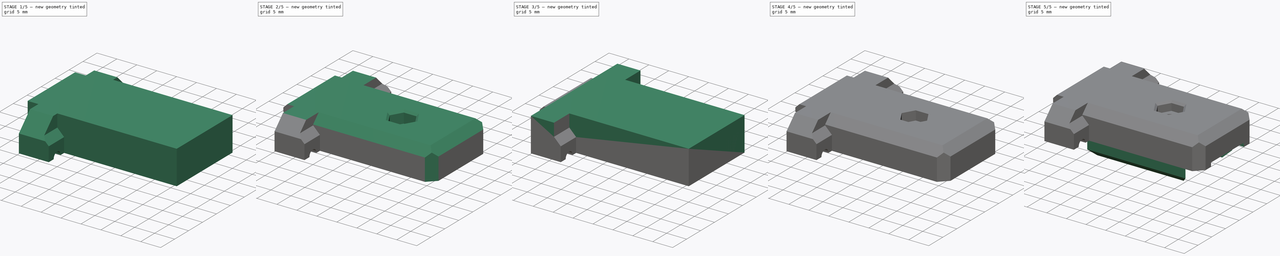
[diagram: build sequence overview — one tinted view per stage of 5, left to right]
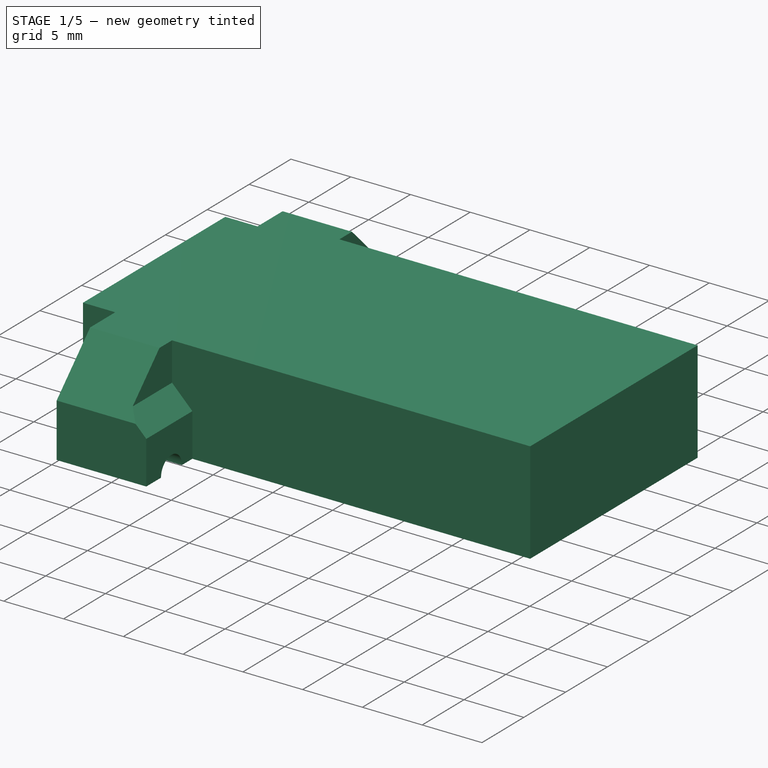
[diagram: stage 1 of 5 — iso view after this stage's code; geometry added in this stage tinted green]
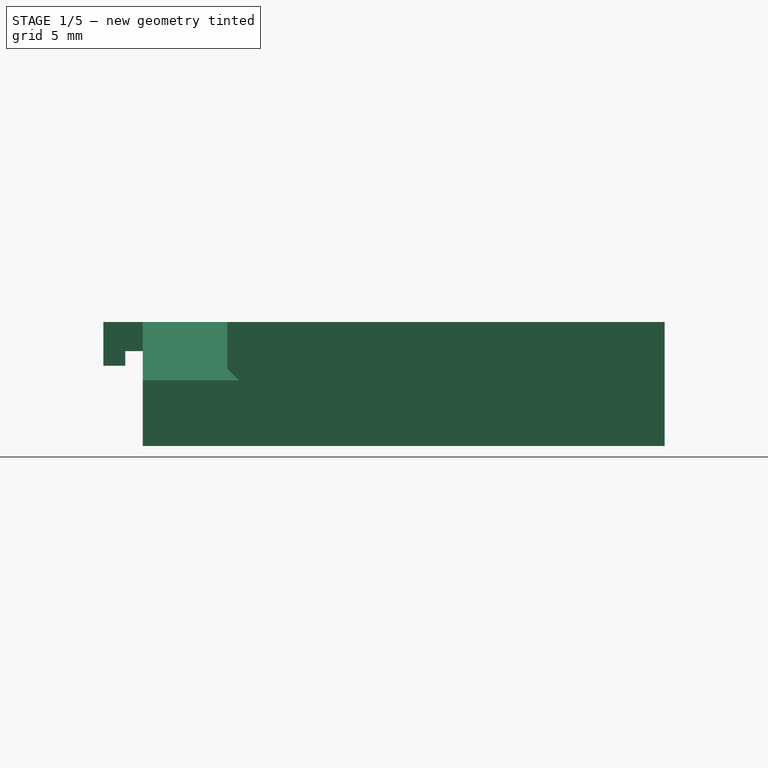
[diagram: stage 1 of 5 — front view after this stage's code; geometry added in this stage tinted green]
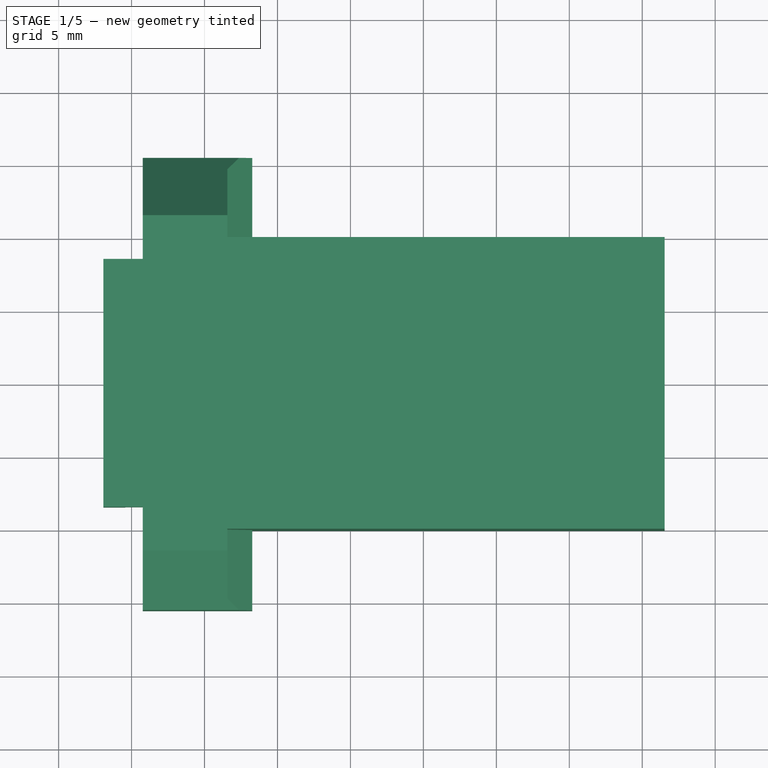
[diagram: stage 1 of 5 — top view after this stage's code; geometry added in this stage tinted green]
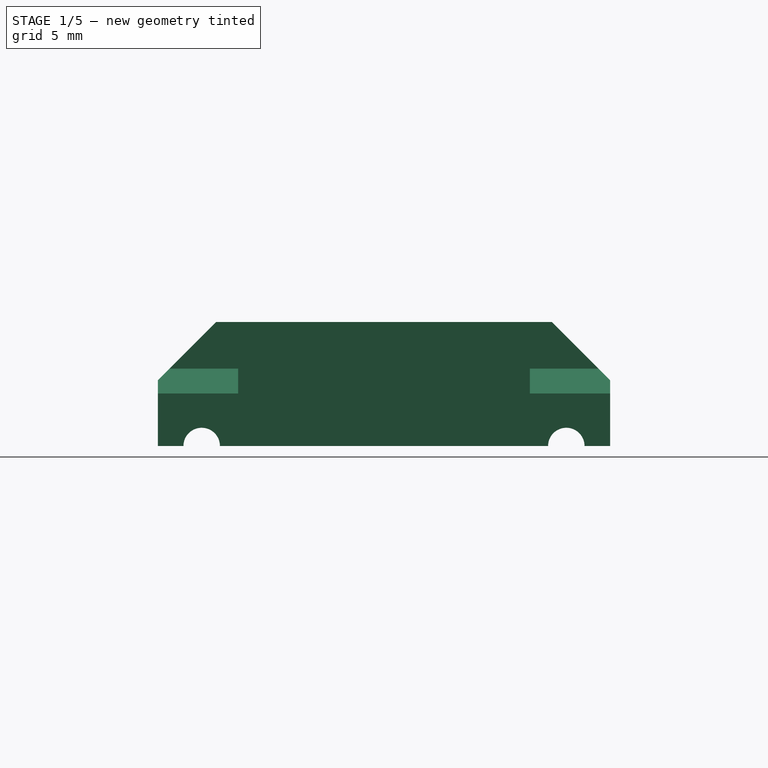
[diagram: stage 1 of 5 — right view after this stage's code; geometry added in this stage tinted green]
FCSTD DOCUMENT  (FreeCAD 1.0R38641 +468 (Git))
Label: case
License: All rights reserved
LicenseURL: https://en.wikipedia.org/wiki/All_rights_reserved
objects: Part::Feature×92, Sketcher::SketchObject×30, PartDesign::Pocket×23, PartDesign::Chamfer×19, PartDesign::Pad×11, App::Part×4, PartDesign::Mirrored×4, PartDesign::Fillet×4, PartDesign::SubShapeBinder×2, PartDesign::Body×2
note: 335 computed .brp shape members not serialized (recipe doc carries the construction recipe); baked Part::Feature solids carry a one-line shape summary decoded from their .brp

FEATURE [PartDesign::SubShapeBinder] Binder001
  BindCopyOnChange = 0
  BindMode = 0
  ClaimChildren = false
  Context = -> Body001 [Binder001.]
  Fuse = false
  MakeFace = true
  OffsetFill = false
  OffsetIntersection = false
  OffsetJoinType = 0
  OffsetOpenResult = false
  PartialLoad = false
  Refine = true
  Relative = true
  Support = -> [rs232usb_002[Part__Feature091.Face5]]
  _Version = 2
FEATURE [Part::Feature] Part__Feature046  label="C_0805_2012Metric003"
  Placement = pos=(3.6195,4.826,1.595) rot=(0,0,1;3.14159rad)
  shape: bbox 2 x 1.25 x 1.25 mm, 28 faces (baked)
FEATURE [Part::Feature] Part__Feature047  label="USB_C_Receptacle_GCT_USB4105-xx-A_16P_TopMnt_Horizontal037"
  Placement = pos=(10.3505,0,1.595) rot=(0,0,1;1.5708rad)
  shape: bbox 2.4 x 0.25 x 0.1 mm, 6 faces (baked)
FEATURE [Part::Feature] Part__Feature048  label="USB_C_Receptacle_GCT_USB4105-xx-A_16P_TopMnt_Horizontal038"
  Placement = pos=(10.3505,0,1.595) rot=(0,0,1;1.5708rad)
  shape: bbox 2.4 x 0.25 x 0.1 mm, 6 faces (baked)
FEATURE [Part::Feature] Part__Feature049  label="USB_C_Receptacle_GCT_USB4105-xx-A_16P_TopMnt_Horizontal039"
  Placement = pos=(10.3505,0,1.595) rot=(0,0,1;1.5708rad)
  shape: bbox 1.9 x 0.25 x 0.1 mm, 6 faces (baked)
FEATURE [Part::Feature] Part__Feature050  label="USB_C_Receptacle_GCT_USB4105-xx-A_16P_TopMnt_Horizontal040"
  Placement = pos=(10.3505,0,1.595) rot=(0,0,1;1.5708rad)
  shape: bbox 1.9 x 0.25 x 0.1 mm, 6 faces (baked)
FEATURE [Part::Feature] Part__Feature051  label="USB_C_Receptacle_GCT_USB4105-xx-A_16P_TopMnt_Horizontal041"
  Placement = pos=(10.3505,0,1.595) rot=(0,0,1;1.5708rad)
  shape: bbox 2.4 x 0.25 x 0.1 mm, 6 faces (baked)
FEATURE [Part::Feature] Part__Feature052  label="USB_C_Receptacle_GCT_USB4105-xx-A_16P_TopMnt_Horizontal042"
  Placement = pos=(10.3505,0,1.595) rot=(0,0,1;1.5708rad)
  shape: bbox 2.4 x 0.25 x 0.1 mm, 6 faces (baked)
FEATURE [Part::Feature] Part__Feature053  label="USB_C_Receptacle_GCT_USB4105-xx-A_16P_TopMnt_Horizontal043"
  Placement = pos=(10.3505,0,1.595) rot=(0,0,1;1.5708rad)
  shape: bbox 1.9 x 0.25 x 0.1 mm, 6 faces (baked)
FEATURE [Part::Feature] Part__Feature054  label="USB_C_Receptacle_GCT_USB4105-xx-A_16P_TopMnt_Horizontal044"
  Placement = pos=(10.3505,0,1.595) rot=(0,0,1;1.5708rad)
  shape: bbox 1.9 x 0.25 x 0.1 mm, 6 faces (baked)
FEATURE [Part::Feature] Part__Feature055  label="USB_C_Receptacle_GCT_USB4105-xx-A_16P_TopMnt_Horizontal045"
  Placement = pos=(10.3505,0,1.595) rot=(0,0,1;1.5708rad)
  shape: bbox 7.05 x 4.45 x 3.59 mm, 66 faces (baked)
FEATURE [Part::Feature] Part__Feature056  label="USB_C_Receptacle_GCT_USB4105-xx-A_16P_TopMnt_Horizontal046"
  Placement = pos=(10.3505,0,1.595) rot=(0,0,1;1.5708rad)
  shape: bbox 0.8 x 0.2 x 0.12 mm, 6 faces (baked)
FEATURE [Part::Feature] Part__Feature057  label="USB_C_Receptacle_GCT_USB4105-xx-A_16P_TopMnt_Horizontal047"
  Placement = pos=(10.3505,0,1.595) rot=(0,0,1;1.5708rad)
  shape: bbox 0.8 x 0.2 x 0.12 mm, 6 faces (baked)
FEATURE [Part::Feature] Part__Feature058  label="USB_C_Receptacle_GCT_USB4105-xx-A_16P_TopMnt_Horizontal048"
  Placement = pos=(10.3505,0,1.595) rot=(0,0,1;1.5708rad)
  shape: bbox 0.8 x 0.2 x 0.12 mm, 6 faces (baked)
FEATURE [Part::Feature] Part__Feature059  label="USB_C_Receptacle_GCT_USB4105-xx-A_16P_TopMnt_Horizontal049"
  Placement = pos=(10.3505,0,1.595) rot=(0,0,1;1.5708rad)
  shape: bbox 0.8 x 0.2 x 0.12 mm, 6 faces (baked)
FEATURE [Part::Feature] Part__Feature060  label="USB_C_Receptacle_GCT_USB4105-xx-A_16P_TopMnt_Horizontal050"
  Placement = pos=(10.3505,0,1.595) rot=(0,0,1;1.5708rad)
  shape: bbox 0.8 x 0.2 x 0.12 mm, 6 faces (baked)
FEATURE [Part::Feature] Part__Feature061  label="USB_C_Receptacle_GCT_USB4105-xx-A_16P_TopMnt_Horizontal051"
  Placement = pos=(10.3505,0,1.595) rot=(0,0,1;1.5708rad)
  shape: bbox 0.8 x 0.2 x 0.12 mm, 6 faces (baked)
FEATURE [Part::Feature] Part__Feature062  label="USB_C_Receptacle_GCT_USB4105-xx-A_16P_TopMnt_Horizontal052"
  Placement = pos=(10.3505,0,1.595) rot=(0,0,1;1.5708rad)
  shape: bbox 0.8 x 0.2 x 0.12 mm, 6 faces (baked)
FEATURE [Part::Feature] Part__Feature063  label="USB_C_Receptacle_GCT_USB4105-xx-A_16P_TopMnt_Horizontal053"
  Placement = pos=(10.3505,0,1.595) rot=(0,0,1;1.5708rad)
  shape: bbox 0.8 x 0.2 x 0.12 mm, 6 faces (baked)
FEATURE [Part::Feature] Part__Feature064  label="USB_C_Receptacle_GCT_USB4105-xx-A_16P_TopMnt_Horizontal054"
  Placement = pos=(10.3505,0,1.595) rot=(0,0,1;1.5708rad)
  shape: bbox 7.33 x 4.47 x 4.26 mm, 161 faces (baked)
FEATURE [Part::Feature] Part__Feature065  label="USB_C_Receptacle_GCT_USB4105-xx-A_16P_TopMnt_Horizontal055"
  Placement = pos=(10.3505,0,1.595) rot=(0,0,1;1.5708rad)
  shape: bbox 2.4 x 0.25 x 0.1 mm, 6 faces (baked)
FEATURE [Part::Feature] Part__Feature066  label="USB_C_Receptacle_GCT_USB4105-xx-A_16P_TopMnt_Horizontal056"
  Placement = pos=(10.3505,0,1.595) rot=(0,0,1;1.5708rad)
  shape: bbox 2.4 x 0.25 x 0.1 mm, 6 faces (baked)
FEATURE [Part::Feature] Part__Feature067  label="USB_C_Receptacle_GCT_USB4105-xx-A_16P_TopMnt_Horizontal057"
  Placement = pos=(10.3505,0,1.595) rot=(0,0,1;1.5708rad)
  shape: bbox 1.9 x 0.25 x 0.1 mm, 6 faces (baked)
FEATURE [Part::Feature] Part__Feature068  label="USB_C_Receptacle_GCT_USB4105-xx-A_16P_TopMnt_Horizontal058"
  Placement = pos=(10.3505,0,1.595) rot=(0,0,1;1.5708rad)
  shape: bbox 1.9 x 0.25 x 0.1 mm, 6 faces (baked)
FEATURE [Part::Feature] Part__Feature069  label="USB_C_Receptacle_GCT_USB4105-xx-A_16P_TopMnt_Horizontal059"
  Placement = pos=(10.3505,0,1.595) rot=(0,0,1;1.5708rad)
  shape: bbox 2.4 x 0.25 x 0.1 mm, 6 faces (baked)
FEATURE [Part::Feature] Part__Feature070  label="USB_C_Receptacle_GCT_USB4105-xx-A_16P_TopMnt_Horizontal060"
  Placement = pos=(10.3505,0,1.595) rot=(0,0,1;1.5708rad)
  shape: bbox 2.4 x 0.25 x 0.1 mm, 6 faces (baked)
FEATURE [Part::Feature] Part__Feature071  label="USB_C_Receptacle_GCT_USB4105-xx-A_16P_TopMnt_Horizontal061"
  Placement = pos=(10.3505,0,1.595) rot=(0,0,1;1.5708rad)
  shape: bbox 1.9 x 0.25 x 0.1 mm, 6 faces (baked)
FEATURE [Part::Feature] Part__Feature072  label="USB_C_Receptacle_GCT_USB4105-xx-A_16P_TopMnt_Horizontal062"
  Placement = pos=(10.3505,0,1.595) rot=(0,0,1;1.5708rad)
  shape: bbox 1.9 x 0.25 x 0.1 mm, 6 faces (baked)
FEATURE [Part::Feature] Part__Feature073  label="USB_C_Receptacle_GCT_USB4105-xx-A_16P_TopMnt_Horizontal063"
  Placement = pos=(10.3505,0,1.595) rot=(0,0,1;1.5708rad)
  shape: bbox 7.05 x 4.45 x 3.59 mm, 66 faces (baked)
FEATURE [Part::Feature] Part__Feature074  label="USB_C_Receptacle_GCT_USB4105-xx-A_16P_TopMnt_Horizontal064"
  Placement = pos=(10.3505,0,1.595) rot=(0,0,1;1.5708rad)
  shape: bbox 0.8 x 0.2 x 0.12 mm, 6 faces (baked)
FEATURE [Part::Feature] Part__Feature075  label="USB_C_Receptacle_GCT_USB4105-xx-A_16P_TopMnt_Horizontal065"
  Placement = pos=(10.3505,0,1.595) rot=(0,0,1;1.5708rad)
  shape: bbox 0.8 x 0.2 x 0.12 mm, 6 faces (baked)
FEATURE [Part::Feature] Part__Feature076  label="USB_C_Receptacle_GCT_USB4105-xx-A_16P_TopMnt_Horizontal066"
  Placement = pos=(10.3505,0,1.595) rot=(0,0,1;1.5708rad)
  shape: bbox 0.8 x 0.2 x 0.12 mm, 6 faces (baked)
FEATURE [Part::Feature] Part__Feature077  label="USB_C_Receptacle_GCT_USB4105-xx-A_16P_TopMnt_Horizontal067"
  Placement = pos=(10.3505,0,1.595) rot=(0,0,1;1.5708rad)
  shape: bbox 0.8 x 0.2 x 0.12 mm, 6 faces (baked)
FEATURE [Part::Feature] Part__Feature078  label="USB_C_Receptacle_GCT_USB4105-xx-A_16P_TopMnt_Horizontal068"
  Placement = pos=(10.3505,0,1.595) rot=(0,0,1;1.5708rad)
  shape: bbox 0.8 x 0.2 x 0.12 mm, 6 faces (baked)
FEATURE [Part::Feature] Part__Feature079  label="USB_C_Receptacle_GCT_USB4105-xx-A_16P_TopMnt_Horizontal069"
  Placement = pos=(10.3505,0,1.595) rot=(0,0,1;1.5708rad)
  shape: bbox 0.8 x 0.2 x 0.12 mm, 6 faces (baked)
FEATURE [Part::Feature] Part__Feature080  label="USB_C_Receptacle_GCT_USB4105-xx-A_16P_TopMnt_Horizontal070"
  Placement = pos=(10.3505,0,1.595) rot=(0,0,1;1.5708rad)
  shape: bbox 0.8 x 0.2 x 0.12 mm, 6 faces (baked)
FEATURE [Part::Feature] Part__Feature081  label="USB_C_Receptacle_GCT_USB4105-xx-A_16P_TopMnt_Horizontal071"
  Placement = pos=(10.3505,0,1.595) rot=(0,0,1;1.5708rad)
  shape: bbox 0.8 x 0.2 x 0.12 mm, 6 faces (baked)
FEATURE [Part::Feature] Part__Feature082  label="USB_C_Receptacle_GCT_USB4105-xx-A_16P_TopMnt_Horizontal072"
  Placement = pos=(10.3505,0,1.595) rot=(0,0,1;1.5708rad)
  shape: bbox 7.33 x 4.47 x 4.26 mm, 161 faces (baked)
FEATURE [Part::Feature] Part__Feature083  label="C_0805_2012Metric004"
  Placement = pos=(0.0635,4.826,1.595) rot=(0,0,1;0rad)
  shape: bbox 2 x 1.25 x 1.25 mm, 28 faces (baked)
FEATURE [Part::Feature] Part__Feature084  label="SOIC-16_3.9x9.9mm_P1.27mm001"
  Placement = pos=(-5.7785,0,1.595) rot=(0,0,1;0rad)
  shape: bbox 6 x 9.9 x 1.75 mm, 276 faces (baked)
FEATURE [Part::Feature] Part__Feature085  label="CP_EIA-3528-12_Kemet-T003"
  Placement = pos=(-6.9215,4.445,-0.085) rot=(1,0,0;3.14159rad)
  shape: bbox 3.7 x 3 x 1.2 mm, 40 faces (baked)
FEATURE [Part::Feature] Part__Feature086  label="CP_EIA-3528-12_Kemet-T004"
  Placement = pos=(-4.0005,0,-0.085) rot=(0.707107,-0.707107,0;3.14159rad)
  shape: bbox 3 x 3.7 x 1.2 mm, 40 faces (baked)
FEATURE [Part::Feature] Part__Feature087  label="R_0805_2012Metric002"
  Placement = pos=(5.0165,4.318,-0.085) rot=(0.707107,0.707107,0;3.14159rad)
  shape: bbox 1.2 x 2 x 0.45 mm, 26 faces (baked)
FEATURE [Part::Feature] Part__Feature088  label="R_0805_2012Metric003"
  Placement = pos=(5.0165,-4.318,-0.085) rot=(0.707107,-0.707107,0;3.14159rad)
  shape: bbox 1.2 x 2 x 0.45 mm, 26 faces (baked)
FEATURE [Part::Feature] Part__Feature089  label="C_0805_2012Metric005"
  Placement = pos=(6.9215,0,-0.085) rot=(0.707107,0.707107,0;3.14159rad)
  shape: bbox 1.25 x 2 x 1.25 mm, 28 faces (baked)
FEATURE [Part::Feature] Part__Feature090  label="CP_EIA-3528-12_Kemet-T005"
  Placement = pos=(-7.8105,0,-0.085) rot=(0.707107,-0.707107,0;3.14159rad)
  shape: bbox 3 x 3.7 x 1.2 mm, 40 faces (baked)
FEATURE [Part::Feature] Part__Feature091  label="rs232usb_PCB001"
  shape: bbox 28.07 x 13.46 x 1.51 mm, 35 faces (baked)
FEATURE [Sketcher::SketchObject] Sketch013
  ArcFitTolerance = 1e-06
  AttachmentSupport = -> [XY_Plane003]
  ExternalGeometry = -> [Binder001]
  FullyConstrained = true
  MakeInternals = false
  MapMode = 5
  sketch-geometry (8):
    g0: LineSegment StartX=-11.7335 StartY=-10 StartZ=0 EndX=16.5335 EndY=-10 EndZ=0
    g1: LineSegment StartX=16.5335 StartY=-10 StartZ=0 EndX=16.5335 EndY=10 EndZ=0
    g2: LineSegment StartX=16.5335 StartY=10 StartZ=0 EndX=-11.7335 EndY=10 EndZ=0
    g3: LineSegment StartX=-19.2335 StartY=15.5 StartZ=0 EndX=-19.2335 EndY=-15.5 EndZ=0
    g4: LineSegment StartX=-19.2335 StartY=-15.5 StartZ=0 EndX=-11.7335 EndY=-15.5 EndZ=0
    g5: LineSegment StartX=-11.7335 StartY=15.5 StartZ=0 EndX=-19.2335 EndY=15.5 EndZ=0
    g6: LineSegment StartX=-11.7335 StartY=10 StartZ=0 EndX=-11.7335 EndY=15.5 EndZ=0
    g7: LineSegment StartX=-11.7335 StartY=-10 StartZ=0 EndX=-11.7335 EndY=-15.5 EndZ=0
  constraints (22):
    c: Coincident(g0,g1)
    c: Coincident(g1,g2)
    c: Vertical(g1)
    c: Horizontal(g0)
    c: Horizontal(g2)
    c: Coincident(g3,g4)
    c: Coincident(g5,g3)
    c: Horizontal(g4)
    c: Horizontal(g5)
    c: Coincident(g6,g2)
    c: Coincident(g6,g5)
    c: Vertical(g6)
    c: Coincident(g7,g0)
    c: Coincident(g7,g4)
    c: Vertical(g7)
    c: Symmetric(g3,g3,g-1)
    c: Symmetric(g0,g2,g-1)
    c: DistanceX(g3,g-3) = 5.2
    c: DistanceX(g4,g4) = 7.5
    c: DistanceX(g-4,g0) = 2.5
    c: DistanceY(g1,g1) = 20
    c: DistanceY(g3,g3) = 31
FEATURE [PartDesign::Pad] Pad004
  Direction = (0,0,1)
  Length = 8.5
  Length2 = 10
  Profile = -> Sketch013
  ReferenceAxis = -> Sketch013 [N_Axis]
  Refine = true
  Suppressed = false
  Type = 0
FEATURE [Sketcher::SketchObject] Sketch014
  ArcFitTolerance = 1e-06
  AttachmentSupport = -> [Pad004]
  ExternalGeometry = -> [Pad004]
  FullyConstrained = true
  MakeInternals = false
  MapMode = 5
  Placement = pos=(0,0,0) rot=(1,0,0;3.14159rad)
  sketch-geometry (4):
    g0: LineSegment StartX=-19.2335 StartY=-8.5 StartZ=0 EndX=15.0335 EndY=-8.5 EndZ=0
    g1: LineSegment StartX=15.0335 StartY=-8.5 StartZ=0 EndX=15.0335 EndY=8.5 EndZ=0
    g2: LineSegment StartX=15.0335 StartY=8.5 StartZ=0 EndX=-19.2335 EndY=8.5 EndZ=0
    g3: LineSegment StartX=-19.2335 StartY=8.5 StartZ=0 EndX=-19.2335 EndY=-8.5 EndZ=0
  constraints (11):
    c: Coincident(g0,g1)
    c: Coincident(g1,g2)
    c: Coincident(g2,g3)
    c: Coincident(g3,g0)
    c: Horizontal(g0)
    c: Horizontal(g2)
    c: Vertical(g1)
    c: PointOnObject(g0,g-3)
    c: Symmetric(g2,g0,g-1)
    c: DistanceY(g3,g3) = 17
    c: DistanceX(g1,g-4) = 1.5
FEATURE [PartDesign::Pocket] Pocket008
  BaseFeature = -> Pad004
  Direction = (0,0,1)
  Length = 5.5
  Length2 = 5
  Profile = -> Sketch014
  ReferenceAxis = -> Sketch014 [N_Axis]
  Refine = true
  Suppressed = false
  Type = 0
FEATURE [Sketcher::SketchObject] Sketch015
  ArcFitTolerance = 1e-06
  AttachmentSupport = -> [Pocket008]
  ExternalGeometry = -> [Pocket008]
  FullyConstrained = true
  MakeInternals = false
  MapMode = 5
  Placement = pos=(0,0,0) rot=(1,0,0;3.14159rad)
  sketch-geometry (4):
    g0: LineSegment StartX=-19.2335 StartY=10 StartZ=0 EndX=-19.2335 EndY=-10 EndZ=0
    g1: LineSegment StartX=-19.2335 StartY=-10 StartZ=0 EndX=-13.2335 EndY=-10 EndZ=0
    g2: LineSegment StartX=-13.2335 StartY=-10 StartZ=0 EndX=-13.2335 EndY=10 EndZ=0
    g3: LineSegment StartX=-13.2335 StartY=10 StartZ=0 EndX=-19.2335 EndY=10 EndZ=0
  constraints (11):
    c: Coincident(g0,g1)
    c: Coincident(g1,g2)
    c: Coincident(g2,g3)
    c: Coincident(g3,g0)
    c: Vertical(g2)
    c: Horizontal(g1)
    c: Horizontal(g3)
    c: PointOnObject(g0,g-3)
    c: Symmetric(g0,g0,g-1)
    c: DistanceY(g0,g0) = 20
    c: DistanceX(g3,g3) = 6
FEATURE [PartDesign::Pocket] Pocket009
  BaseFeature = -> Pocket008
  Direction = (0,0,1)
  Length = 5.5
  Length2 = 5
  Profile = -> Sketch015
  ReferenceAxis = -> Sketch015 [N_Axis]
  Refine = true
  Suppressed = false
  Type = 0
FEATURE [Sketcher::SketchObject] Sketch016
  ArcFitTolerance = 1e-06
  AttachmentSupport = -> [Pocket009]
  ExternalGeometry = -> [Pocket009]
  FullyConstrained = true
  MakeInternals = false
  MapMode = 5
  Placement = pos=(0,0,0) rot=(1,0,0;3.14159rad)
  sketch-geometry (4):
    g0: LineSegment StartX=-18.2335 StartY=14.5 StartZ=0 EndX=-18.2335 EndY=11 EndZ=0
    g1: LineSegment StartX=-18.2335 StartY=11 StartZ=0 EndX=-13.9335 EndY=11 EndZ=0
    g2: LineSegment StartX=-13.9335 StartY=11 StartZ=0 EndX=-13.9335 EndY=14.5 EndZ=0
    g3: LineSegment StartX=-13.9335 StartY=14.5 StartZ=0 EndX=-18.2335 EndY=14.5 EndZ=0
  constraints (12):
    c: Coincident(g0,g1)
    c: Coincident(g1,g2)
    c: Coincident(g2,g3)
    c: Coincident(g3,g0)
    c: Vertical(g0)
    c: Vertical(g2)
    c: Horizontal(g1)
    c: Horizontal(g3)
    c: DistanceX(g2,g-3) = 2.2
    c: DistanceX(g-4,g0) = 1
    c: DistanceY(g2,g-3) = 1
    c: DistanceY(g-4,g0) = 1
FEATURE [PartDesign::Pocket] Pocket010
  BaseFeature = -> Pocket009
  Direction = (0,0,1)
  Length = 3
  Length2 = 5
  Profile = -> Sketch016
  ReferenceAxis = -> Sketch016 [N_Axis]
  Refine = true
  Suppressed = false
  Type = 0
FEATURE [PartDesign::Mirrored] Mirrored002
  BaseFeature = -> Pocket010
  MirrorPlane = -> Sketch016 [H_Axis]
  Originals = -> [Pocket010]
  Refine = true
  Suppressed = false
  TransformMode = 0
FEATURE [Sketcher::SketchObject] Sketch017
  ArcFitTolerance = 1e-06
  AttachmentSupport = -> [Mirrored002]
  FullyConstrained = true
  MakeInternals = false
  MapMode = 5
  Placement = pos=(-19.2335,0,0) rot=(0.57735,-0.57735,-0.57735;2.0944rad)
  sketch-geometry (2):
    g0: Circle CenterX=12.495 CenterY=0 CenterZ=0 NormalX=0 NormalY=0 NormalZ=1 AngleXU=0 Radius=1.25
    g1: Circle CenterX=-12.495 CenterY=0 CenterZ=0 NormalX=0 NormalY=0 NormalZ=1 AngleXU=0 Radius=1.25
  constraints (5):
    c: PointOnObject(g0,g-1)
    c: Symmetric(g0,g1,g-2)
    c: Equal(g0,g1)
    c: Diameter(g0) = 2.5
    c: DistanceX(g1,g0) = 24.99
FEATURE [PartDesign::Pocket] Pocket011
  BaseFeature = -> Mirrored002
  Direction = (1,0,0)
  Length = 5
  Length2 = 5
  Profile = -> Sketch017
  ReferenceAxis = -> Sketch017 [N_Axis]
  Refine = true
  Suppressed = false
  Type = 1
FEATURE [PartDesign::Chamfer] Chamfer007
  Angle = 45
  Base = -> Pocket011 [Edge75,Edge64]
  BaseFeature = -> Pocket011
  ChamferType = 0
  FlipDirection = false
  Refine = true
  Size = 1.49999
  Size2 = 1
  SupportTransform = false
  Suppressed = false
  UseAllEdges = false
FEATURE [Sketcher::SketchObject] Sketch018
  ArcFitTolerance = 1e-06
  AttachmentSupport = -> [Pocket011]
  ExternalGeometry = -> [Pocket011]
  FullyConstrained = true
  MakeInternals = false
  MapMode = 5
  Placement = pos=(0,-15.5,0) rot=(1,0,0;1.5708rad)
  sketch-geometry (4):
    g0: LineSegment StartX=-11.7335 StartY=3.6 StartZ=0 EndX=-13.4335 EndY=5.3 EndZ=0
    g1: LineSegment StartX=-13.4335 StartY=5.3 StartZ=0 EndX=-13.4335 EndY=8.5 EndZ=0
    g2: LineSegment StartX=-11.7335 StartY=3.6 StartZ=0 EndX=-11.7335 EndY=8.5 EndZ=0
    g3: LineSegment StartX=-11.7335 StartY=8.5 StartZ=0 EndX=-13.4335 EndY=8.5 EndZ=0
  constraints (11):
    c: PointOnObject(g0,g-3)
    c: DistanceY(g-3,g0) = 3.6
    c: Coincident(g0,g1)
    c: Vertical(g1)
    c: Coincident(g2,g-3)
    c: Coincident(g2,g3)
    c: Coincident(g3,g1)
    c: DistanceX(g3,g3) = 1.7
    c: Angle(g2,g0) = 0.785398
    c: Coincident(g2,g0)
    c: Horizontal(g3)
FEATURE [PartDesign::Pocket] Pocket012
  BaseFeature = -> Chamfer007
  Direction = (0,1,-2e-16)
  Length = 5.5
  Length2 = 5
  Profile = -> Sketch018
  ReferenceAxis = -> Sketch018 [N_Axis]
  Refine = true
  Suppressed = false
  Type = 0
FEATURE [PartDesign::Mirrored] Mirrored003
  BaseFeature = -> Pocket012
  MirrorPlane = -> XZ_Plane003
  Originals = -> [Pocket012]
  Refine = true
  Suppressed = false
  TransformMode = 0
FEATURE [PartDesign::Chamfer] Chamfer008
  Angle = 45
  Base = -> Mirrored003 [Edge100,Edge102]
  BaseFeature = -> Mirrored003
  ChamferType = 0
  FlipDirection = false
  Refine = true
  Size = 4
  Size2 = 1
  SupportTransform = false
  Suppressed = false
  UseAllEdges = false
FEATURE [Sketcher::SketchObject] Sketch019
  ArcFitTolerance = 1e-06
  AttachmentSupport = -> [Chamfer008]
  ExternalGeometry = -> [Chamfer008]
  FullyConstrained = true
  MakeInternals = false
  MapMode = 5
  Placement = pos=(-19.2335,0,0) rot=(0.57735,-0.57735,-0.57735;2.0944rad)
  sketch-geometry (4):
    g0: LineSegment StartX=-8.5 StartY=8.5 StartZ=0 EndX=-8.5 EndY=6.5 EndZ=0
    g1: LineSegment StartX=-8.5 StartY=6.5 StartZ=0 EndX=8.5 EndY=6.5 EndZ=0
    g2: LineSegment StartX=8.5 StartY=6.5 StartZ=0 EndX=8.5 EndY=8.5 EndZ=0
    g3: LineSegment StartX=8.5 StartY=8.5 StartZ=0 EndX=-8.5 EndY=8.5 EndZ=0
  constraints (11):
    c: Coincident(g0,g1)
    c: Coincident(g1,g2)
    c: Coincident(g2,g3)
    c: Coincident(g3,g0)
    c: Vertical(g0)
    c: Vertical(g2)
    c: Horizontal(g1)
    c: PointOnObject(g0,g-3)
    c: Symmetric(g2,g0,g-2)
    c: DistanceX(g3,g3) = 17
    c: DistanceY(g-4,g0) = 1
FEATURE [PartDesign::Pad] Pad005
  BaseFeature = -> Chamfer008
  Direction = (-1,0,0)
  Length = 1.2
  Length2 = 10
  Profile = -> Sketch019
  ReferenceAxis = -> Sketch019 [N_Axis]
  Refine = true
  Suppressed = false
  Type = 0
FEATURE [Sketcher::SketchObject] Sketch020
  ArcFitTolerance = 1e-06
  AttachmentSupport = -> [Pad005]
  ExternalGeometry = -> [Pad005]
  FullyConstrained = true
  MakeInternals = false
  MapMode = 5
  Placement = pos=(-20.4335,0,0) rot=(0.57735,-0.57735,-0.57735;2.0944rad)
  sketch-geometry (4):
    g0: LineSegment StartX=8.5 StartY=8.5 StartZ=0 EndX=-8.5 EndY=8.5 EndZ=0
    g1: LineSegment StartX=-8.5 StartY=8.5 StartZ=0 EndX=-8.5 EndY=5.5 EndZ=0
    g2: LineSegment StartX=-8.5 StartY=5.5 StartZ=0 EndX=8.5 EndY=5.5 EndZ=0
    g3: LineSegment StartX=8.5 StartY=5.5 StartZ=0 EndX=8.5 EndY=8.5 EndZ=0
  constraints (10):
    c: Coincident(g0,g1)
    c: Coincident(g1,g2)
    c: Coincident(g2,g3)
    c: Coincident(g3,g0)
    c: Horizontal(g2)
    c: Vertical(g1)
    c: Vertical(g3)
    c: Coincident(g0,g-3)
    c: Coincident(g0,g-3)
    c: DistanceY(g1,g1) = 3
FEATURE [PartDesign::Pad] Pad006
  BaseFeature = -> Pad005
  Direction = (-1,0,0)
  Length = 1.5
  Length2 = 10
  Profile = -> Sketch020
  ReferenceAxis = -> Sketch020 [N_Axis]
  Refine = true
  Suppressed = false
  Type = 0
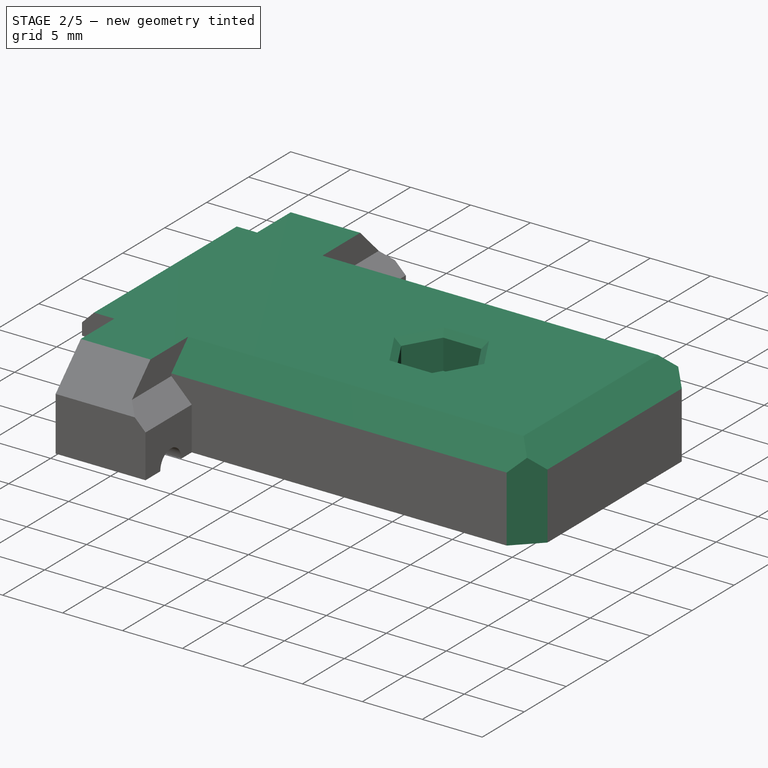
[diagram: stage 2 of 5 — iso view after this stage's code; geometry added in this stage tinted green]
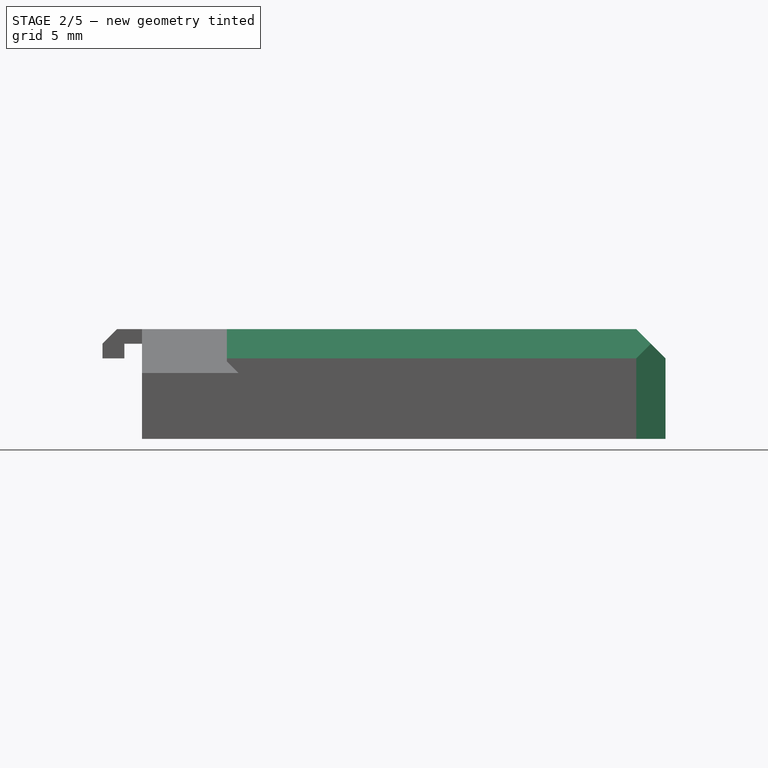
[diagram: stage 2 of 5 — front view after this stage's code; geometry added in this stage tinted green]
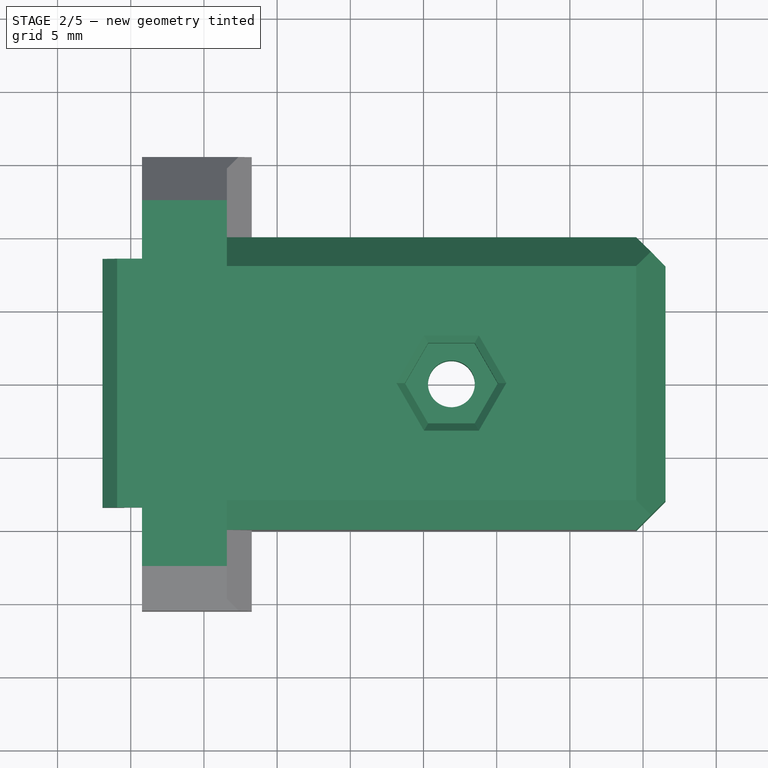
[diagram: stage 2 of 5 — top view after this stage's code; geometry added in this stage tinted green]
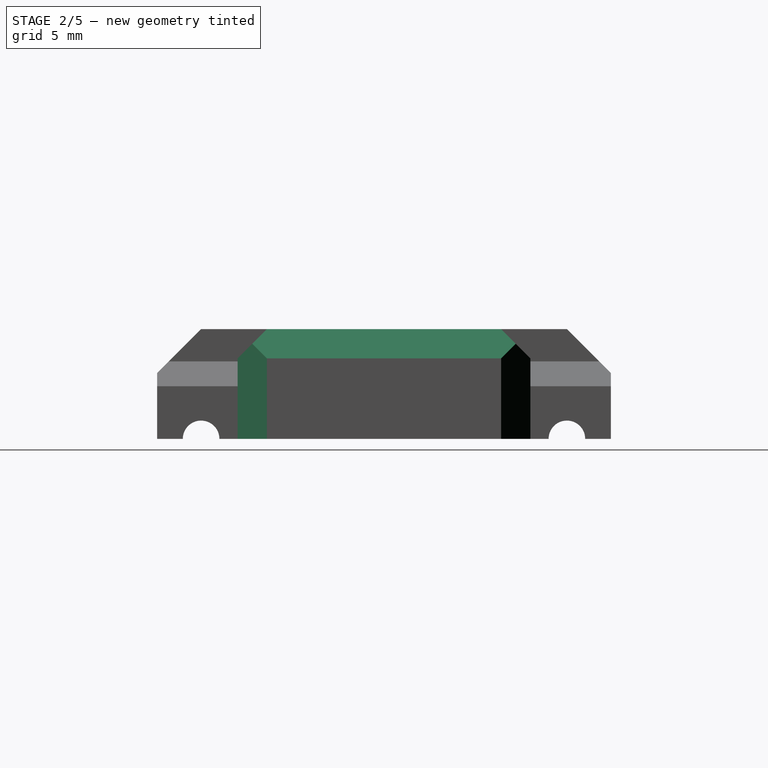
[diagram: stage 2 of 5 — right view after this stage's code; geometry added in this stage tinted green]
FEATURE [PartDesign::Chamfer] Chamfer009
  Angle = 45
  Base = -> Pad006 [Edge134]
  BaseFeature = -> Pad006
  ChamferType = 0
  FlipDirection = false
  Refine = true
  Size = 2
  Size2 = 1
  SupportTransform = false
  Suppressed = false
  UseAllEdges = false
FEATURE [Sketcher::SketchObject] Sketch021
  ArcFitTolerance = 1e-06
  ExternalGeometry = -> [Binder001]
  FullyConstrained = true
  MakeInternals = false
  MapMode = 5
  Placement = pos=(0,0,5.5) rot=(1,0,0;3.14159rad)
  sketch-geometry (1):
    g0: Circle CenterX=1.905 CenterY=0 CenterZ=0 NormalX=0 NormalY=0 NormalZ=1 AngleXU=0 Radius=3
  constraints (2):
    c: Coincident(g0,g-3)
    c: Diameter(g0) = 6
FEATURE [PartDesign::Pad] Pad007
  BaseFeature = -> Chamfer009
  Direction = (0,-1e-16,-1)
  Length = 4.6
  Length2 = 10
  Profile = -> Sketch021
  ReferenceAxis = -> Sketch021 [N_Axis]
  Refine = true
  Suppressed = false
  Type = 0
FEATURE [PartDesign::Fillet] Fillet001
  Base = -> Pad007 [Edge103]
  BaseFeature = -> Pad007
  Radius = 3
  Refine = true
  SupportTransform = false
  Suppressed = false
  UseAllEdges = false
FEATURE [PartDesign::Chamfer] Chamfer010
  Angle = 45
  Base = -> Fillet001 [Edge77,Edge76,Edge74]
  BaseFeature = -> Fillet001
  ChamferType = 0
  FlipDirection = false
  Refine = true
  Size = 3
  Size2 = 1
  SupportTransform = false
  Suppressed = false
  UseAllEdges = false
FEATURE [PartDesign::Chamfer] Chamfer011
  Angle = 45
  Base = -> Chamfer010 [Edge138,Edge142]
  BaseFeature = -> Chamfer010
  ChamferType = 0
  FlipDirection = false
  Refine = true
  Size = 1
  Size2 = 1
  SupportTransform = false
  Suppressed = false
  UseAllEdges = false
FEATURE [PartDesign::Chamfer] Chamfer012
  Angle = 45
  Base = -> Chamfer011 [Edge92,Edge101]
  BaseFeature = -> Chamfer011
  ChamferType = 0
  FlipDirection = false
  Refine = true
  Size = 2
  Size2 = 1
  SupportTransform = false
  Suppressed = false
  UseAllEdges = false
FEATURE [Sketcher::SketchObject] Sketch022
  ArcFitTolerance = 1e-06
  AttachmentSupport = -> [Chamfer012]
  FullyConstrained = false
  MakeInternals = false
  MapMode = 5
  Placement = pos=(0,0,8.5) rot=(0,0,1;0rad)
  sketch-geometry (4):
    g0: LineSegment StartX=-32.3674 StartY=37.7996 StartZ=0 EndX=-32.3674 EndY=-25.4314 EndZ=0
    g1: LineSegment StartX=-32.3674 StartY=-25.4314 StartZ=0 EndX=38.9271 EndY=-25.4314 EndZ=0
    g2: LineSegment StartX=38.9271 StartY=-25.4314 StartZ=0 EndX=38.9271 EndY=37.7996 EndZ=0
    g3: LineSegment StartX=38.9271 StartY=37.7996 StartZ=0 EndX=-32.3674 EndY=37.7996 EndZ=0
  constraints (8):
    c: Coincident(g0,g1)
    c: Coincident(g1,g2)
    c: Coincident(g2,g3)
    c: Coincident(g3,g0)
    c: Vertical(g0)
    c: Vertical(g2)
    c: Horizontal(g1)
    c: Horizontal(g3)
FEATURE [PartDesign::Pocket] Pocket013
  BaseFeature = -> Chamfer012
  Direction = (0,0,-1)
  Length = 1
  Length2 = 5
  Profile = -> Sketch022
  ReferenceAxis = -> Sketch022 [N_Axis]
  Refine = true
  Suppressed = false
  Type = 0
FEATURE [Sketcher::SketchObject] Sketch023
  ArcFitTolerance = 1e-06
  AttachmentSupport = -> [Pocket013]
  ExternalGeometry = -> [Pocket013]
  FullyConstrained = true
  MakeInternals = false
  MapMode = 5
  Placement = pos=(0,0,0.9) rot=(1,0,0;3.14159rad)
  sketch-geometry (1):
    g0: Circle CenterX=1.905 CenterY=0 CenterZ=0 NormalX=0 NormalY=0 NormalZ=1 AngleXU=0 Radius=1.6
  constraints (2):
    c: Coincident(g0,g-3)
    c: Diameter(g0) = 3.2
FEATURE [PartDesign::Pocket] Pocket014
  BaseFeature = -> Pocket013
  Direction = (0,0,1)
  Length = 5
  Length2 = 5
  Profile = -> Sketch023
  ReferenceAxis = -> Sketch023 [N_Axis]
  Refine = true
  Suppressed = false
  Type = 1
FEATURE [Sketcher::SketchObject] Sketch024
  ArcFitTolerance = 1e-06
  AttachmentSupport = -> [Pocket014]
  ExternalGeometry = -> [Pocket014]
  FullyConstrained = true
  MakeInternals = false
  MapMode = 5
  Placement = pos=(0,0,7.5) rot=(0,0,1;0rad)
  sketch-geometry (7):
    g0: LineSegment StartX=3.49271 StartY=2.75 StartZ=0 EndX=0.317287 EndY=2.75 EndZ=0
    g1: LineSegment StartX=0.317287 StartY=2.75 StartZ=0 EndX=-1.27043 EndY=-8.52904e-11 EndZ=0
    g2: LineSegment StartX=-1.27043 StartY=-8.52904e-11 StartZ=0 EndX=0.317287 EndY=-2.75 EndZ=0
    g3: LineSegment StartX=0.317287 StartY=-2.75 StartZ=0 EndX=3.49271 EndY=-2.75 EndZ=0
    g4: LineSegment StartX=3.49271 StartY=-2.75 StartZ=0 EndX=5.08043 EndY=0 EndZ=0
    g5: LineSegment StartX=5.08043 StartY=0 StartZ=0 EndX=3.49271 EndY=2.75 EndZ=0
    g6: Circle [constr] CenterX=1.905 CenterY=0 CenterZ=0 NormalX=0 NormalY=0 NormalZ=1 AngleXU=0 Radius=3.17543
  constraints (16):
    c: Coincident(g0,g1)
    c: Coincident(g1,g2)
    c: Coincident(g2,g3)
    c: Coincident(g3,g4)
    c: Coincident(g4,g5)
    c: Coincident(g5,g0)
    c: Equal(g0, g1-g5) x5
    c: PointOnObject(g0,g6)
    c: PointOnObject(g1,g6)
    c: PointOnObject(g2,g6)
    c: PointOnObject(g3,g6)
    c: PointOnObject(g4,g6)
    c: PointOnObject(g5,g6)
    c: Coincident(g6,g-3)
    c: PointOnObject(g4,g-1)
    c: Distance(g3,g0) = 5.5
FEATURE [PartDesign::Pocket] Pocket015
  BaseFeature = -> Pocket014
  Direction = (0,0,-1)
  Length = 3
  Length2 = 5
  Profile = -> Sketch024
  ReferenceAxis = -> Sketch024 [N_Axis]
  Refine = true
  Suppressed = false
  Type = 0
FEATURE [PartDesign::Chamfer] Chamfer013
  Angle = 45
  Base = -> Pocket015 [Edge154,Edge149,Edge150,Edge151,Edge152,Edge153]
  BaseFeature = -> Pocket015
  ChamferType = 0
  FlipDirection = false
  Refine = true
  Size = 0.5
  Size2 = 1
  SupportTransform = false
  Suppressed = false
  UseAllEdges = false
FEATURE [PartDesign::Chamfer] Chamfer015
  Angle = 45
  Base = -> Chamfer013 [Edge136,Edge137,Edge139,Edge142,Edge141]
  BaseFeature = -> Chamfer013
  ChamferType = 0
  FlipDirection = false
  Refine = true
  Size = 1
  Size2 = 1
  SupportTransform = false
  Suppressed = false
  UseAllEdges = false
FEATURE [PartDesign::Fillet] Fillet002
  Base = -> Chamfer015 [Edge6,Edge10]
  BaseFeature = -> Chamfer015
  Radius = 1
  Refine = true
  SupportTransform = false
  Suppressed = false
  UseAllEdges = false
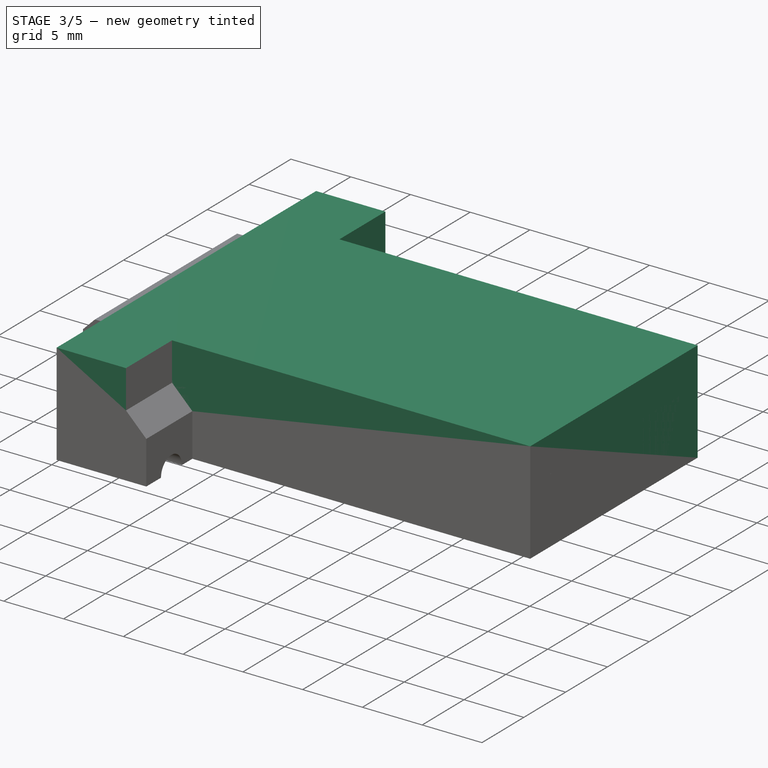
[diagram: stage 3 of 5 — iso view after this stage's code; geometry added in this stage tinted green]
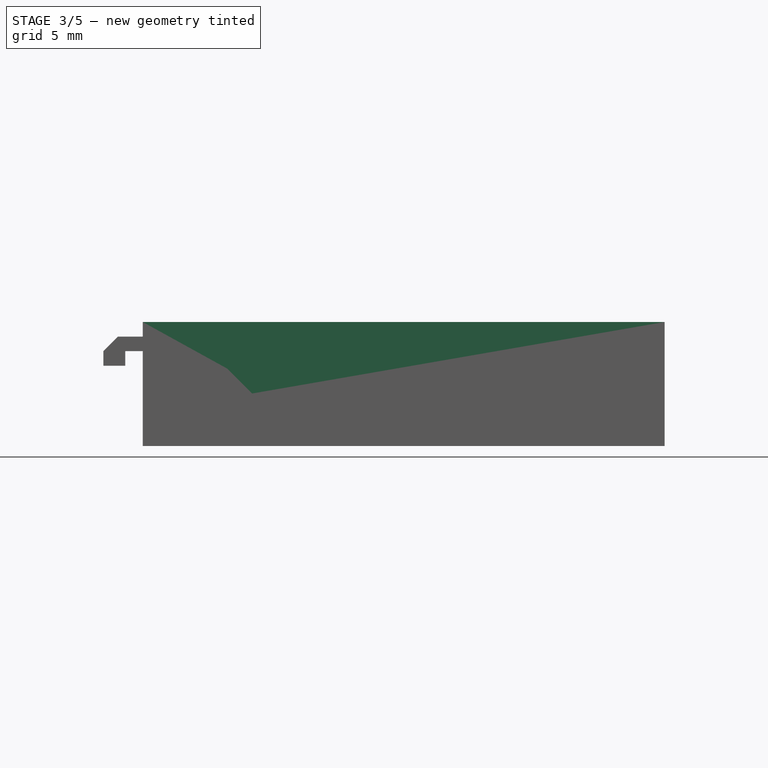
[diagram: stage 3 of 5 — front view after this stage's code; geometry added in this stage tinted green]
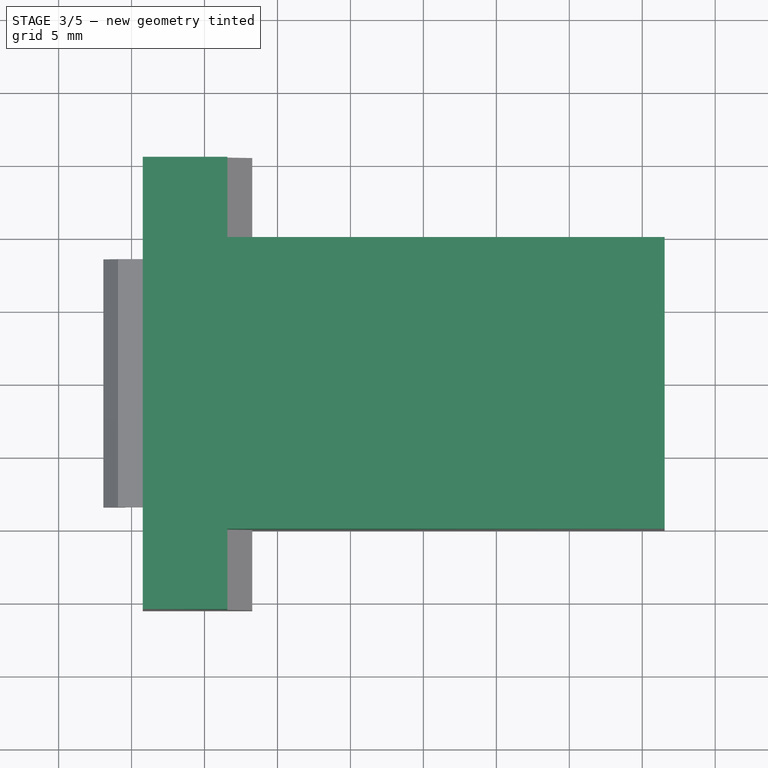
[diagram: stage 3 of 5 — top view after this stage's code; geometry added in this stage tinted green]
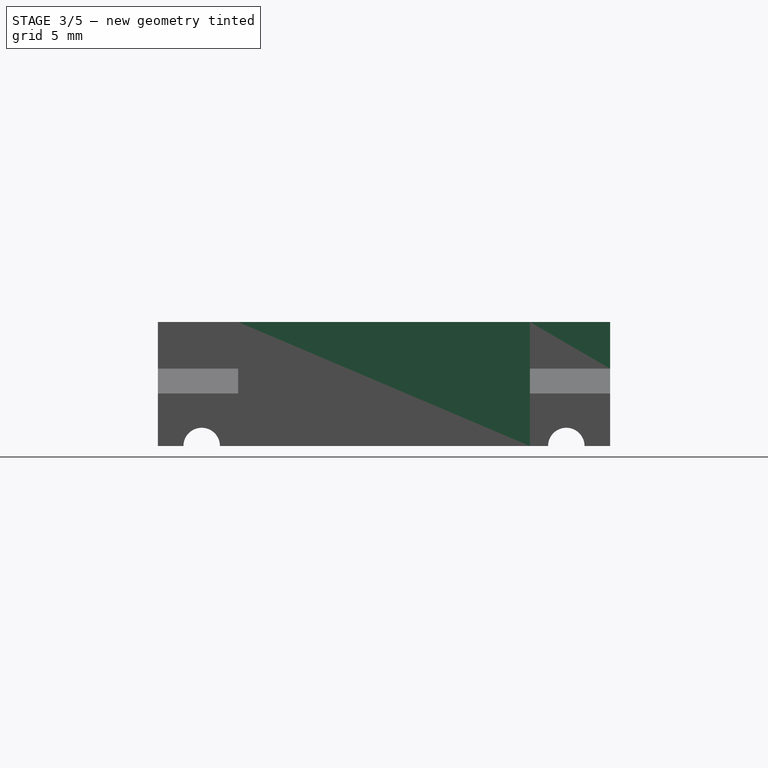
[diagram: stage 3 of 5 — right view after this stage's code; geometry added in this stage tinted green]
FEATURE [Part::Feature] Part__Feature  label="C_0805_2012Metric"
  Placement = pos=(3.6195,4.826,1.595) rot=(0,0,1;3.14159rad)
  shape: bbox 2 x 1.25 x 1.25 mm, 28 faces (baked)
FEATURE [Part::Feature] Part__Feature001  label="USB_C_Receptacle_GCT_USB4105-xx-A_16P_TopMnt_Horizontal"
  Placement = pos=(10.3505,0,1.595) rot=(0,0,1;1.5708rad)
  shape: bbox 2.4 x 0.25 x 0.1 mm, 6 faces (baked)
FEATURE [Part::Feature] Part__Feature002  label="USB_C_Receptacle_GCT_USB4105-xx-A_16P_TopMnt_Horizontal001"
  Placement = pos=(10.3505,0,1.595) rot=(0,0,1;1.5708rad)
  shape: bbox 2.4 x 0.25 x 0.1 mm, 6 faces (baked)
FEATURE [Part::Feature] Part__Feature003  label="USB_C_Receptacle_GCT_USB4105-xx-A_16P_TopMnt_Horizontal002"
  Placement = pos=(10.3505,0,1.595) rot=(0,0,1;1.5708rad)
  shape: bbox 1.9 x 0.25 x 0.1 mm, 6 faces (baked)
FEATURE [Part::Feature] Part__Feature004  label="USB_C_Receptacle_GCT_USB4105-xx-A_16P_TopMnt_Horizontal003"
  Placement = pos=(10.3505,0,1.595) rot=(0,0,1;1.5708rad)
  shape: bbox 1.9 x 0.25 x 0.1 mm, 6 faces (baked)
FEATURE [Part::Feature] Part__Feature005  label="USB_C_Receptacle_GCT_USB4105-xx-A_16P_TopMnt_Horizontal004"
  Placement = pos=(10.3505,0,1.595) rot=(0,0,1;1.5708rad)
  shape: bbox 2.4 x 0.25 x 0.1 mm, 6 faces (baked)
FEATURE [Part::Feature] Part__Feature006  label="USB_C_Receptacle_GCT_USB4105-xx-A_16P_TopMnt_Horizontal005"
  Placement = pos=(10.3505,0,1.595) rot=(0,0,1;1.5708rad)
  shape: bbox 2.4 x 0.25 x 0.1 mm, 6 faces (baked)
FEATURE [Part::Feature] Part__Feature007  label="USB_C_Receptacle_GCT_USB4105-xx-A_16P_TopMnt_Horizontal006"
  Placement = pos=(10.3505,0,1.595) rot=(0,0,1;1.5708rad)
  shape: bbox 1.9 x 0.25 x 0.1 mm, 6 faces (baked)
FEATURE [Part::Feature] Part__Feature008  label="USB_C_Receptacle_GCT_USB4105-xx-A_16P_TopMnt_Horizontal007"
  Placement = pos=(10.3505,0,1.595) rot=(0,0,1;1.5708rad)
  shape: bbox 1.9 x 0.25 x 0.1 mm, 6 faces (baked)
FEATURE [Part::Feature] Part__Feature009  label="USB_C_Receptacle_GCT_USB4105-xx-A_16P_TopMnt_Horizontal008"
  Placement = pos=(10.3505,0,1.595) rot=(0,0,1;1.5708rad)
  shape: bbox 7.05 x 4.45 x 3.59 mm, 66 faces (baked)
FEATURE [Part::Feature] Part__Feature010  label="USB_C_Receptacle_GCT_USB4105-xx-A_16P_TopMnt_Horizontal009"
  Placement = pos=(10.3505,0,1.595) rot=(0,0,1;1.5708rad)
  shape: bbox 0.8 x 0.2 x 0.12 mm, 6 faces (baked)
FEATURE [Part::Feature] Part__Feature011  label="USB_C_Receptacle_GCT_USB4105-xx-A_16P_TopMnt_Horizontal010"
  Placement = pos=(10.3505,0,1.595) rot=(0,0,1;1.5708rad)
  shape: bbox 0.8 x 0.2 x 0.12 mm, 6 faces (baked)
FEATURE [Part::Feature] Part__Feature012  label="USB_C_Receptacle_GCT_USB4105-xx-A_16P_TopMnt_Horizontal011"
  Placement = pos=(10.3505,0,1.595) rot=(0,0,1;1.5708rad)
  shape: bbox 0.8 x 0.2 x 0.12 mm, 6 faces (baked)
FEATURE [Part::Feature] Part__Feature013  label="USB_C_Receptacle_GCT_USB4105-xx-A_16P_TopMnt_Horizontal012"
  Placement = pos=(10.3505,0,1.595) rot=(0,0,1;1.5708rad)
  shape: bbox 0.8 x 0.2 x 0.12 mm, 6 faces (baked)
FEATURE [Part::Feature] Part__Feature014  label="USB_C_Receptacle_GCT_USB4105-xx-A_16P_TopMnt_Horizontal013"
  Placement = pos=(10.3505,0,1.595) rot=(0,0,1;1.5708rad)
  shape: bbox 0.8 x 0.2 x 0.12 mm, 6 faces (baked)
FEATURE [Part::Feature] Part__Feature015  label="USB_C_Receptacle_GCT_USB4105-xx-A_16P_TopMnt_Horizontal014"
  Placement = pos=(10.3505,0,1.595) rot=(0,0,1;1.5708rad)
  shape: bbox 0.8 x 0.2 x 0.12 mm, 6 faces (baked)
FEATURE [Part::Feature] Part__Feature016  label="USB_C_Receptacle_GCT_USB4105-xx-A_16P_TopMnt_Horizontal015"
  Placement = pos=(10.3505,0,1.595) rot=(0,0,1;1.5708rad)
  shape: bbox 0.8 x 0.2 x 0.12 mm, 6 faces (baked)
FEATURE [Part::Feature] Part__Feature017  label="USB_C_Receptacle_GCT_USB4105-xx-A_16P_TopMnt_Horizontal016"
  Placement = pos=(10.3505,0,1.595) rot=(0,0,1;1.5708rad)
  shape: bbox 0.8 x 0.2 x 0.12 mm, 6 faces (baked)
FEATURE [Part::Feature] Part__Feature018  label="USB_C_Receptacle_GCT_USB4105-xx-A_16P_TopMnt_Horizontal017"
  Placement = pos=(10.3505,0,1.595) rot=(0,0,1;1.5708rad)
  shape: bbox 7.33 x 4.47 x 4.26 mm, 161 faces (baked)
FEATURE [Part::Feature] Part__Feature019  label="USB_C_Receptacle_GCT_USB4105-xx-A_16P_TopMnt_Horizontal018"
  Placement = pos=(10.3505,0,1.595) rot=(0,0,1;1.5708rad)
  shape: bbox 2.4 x 0.25 x 0.1 mm, 6 faces (baked)
FEATURE [Part::Feature] Part__Feature020  label="USB_C_Receptacle_GCT_USB4105-xx-A_16P_TopMnt_Horizontal019"
  Placement = pos=(10.3505,0,1.595) rot=(0,0,1;1.5708rad)
  shape: bbox 2.4 x 0.25 x 0.1 mm, 6 faces (baked)
FEATURE [Part::Feature] Part__Feature021  label="USB_C_Receptacle_GCT_USB4105-xx-A_16P_TopMnt_Horizontal020"
  Placement = pos=(10.3505,0,1.595) rot=(0,0,1;1.5708rad)
  shape: bbox 1.9 x 0.25 x 0.1 mm, 6 faces (baked)
FEATURE [Part::Feature] Part__Feature022  label="USB_C_Receptacle_GCT_USB4105-xx-A_16P_TopMnt_Horizontal021"
  Placement = pos=(10.3505,0,1.595) rot=(0,0,1;1.5708rad)
  shape: bbox 1.9 x 0.25 x 0.1 mm, 6 faces (baked)
FEATURE [Part::Feature] Part__Feature023  label="USB_C_Receptacle_GCT_USB4105-xx-A_16P_TopMnt_Horizontal022"
  Placement = pos=(10.3505,0,1.595) rot=(0,0,1;1.5708rad)
  shape: bbox 2.4 x 0.25 x 0.1 mm, 6 faces (baked)
FEATURE [Part::Feature] Part__Feature024  label="USB_C_Receptacle_GCT_USB4105-xx-A_16P_TopMnt_Horizontal023"
  Placement = pos=(10.3505,0,1.595) rot=(0,0,1;1.5708rad)
  shape: bbox 2.4 x 0.25 x 0.1 mm, 6 faces (baked)
FEATURE [Part::Feature] Part__Feature025  label="USB_C_Receptacle_GCT_USB4105-xx-A_16P_TopMnt_Horizontal024"
  Placement = pos=(10.3505,0,1.595) rot=(0,0,1;1.5708rad)
  shape: bbox 1.9 x 0.25 x 0.1 mm, 6 faces (baked)
FEATURE [Part::Feature] Part__Feature026  label="USB_C_Receptacle_GCT_USB4105-xx-A_16P_TopMnt_Horizontal025"
  Placement = pos=(10.3505,0,1.595) rot=(0,0,1;1.5708rad)
  shape: bbox 1.9 x 0.25 x 0.1 mm, 6 faces (baked)
FEATURE [Part::Feature] Part__Feature027  label="USB_C_Receptacle_GCT_USB4105-xx-A_16P_TopMnt_Horizontal026"
  Placement = pos=(10.3505,0,1.595) rot=(0,0,1;1.5708rad)
  shape: bbox 7.05 x 4.45 x 3.59 mm, 66 faces (baked)
FEATURE [Part::Feature] Part__Feature028  label="USB_C_Receptacle_GCT_USB4105-xx-A_16P_TopMnt_Horizontal027"
  Placement = pos=(10.3505,0,1.595) rot=(0,0,1;1.5708rad)
  shape: bbox 0.8 x 0.2 x 0.12 mm, 6 faces (baked)
FEATURE [Part::Feature] Part__Feature029  label="USB_C_Receptacle_GCT_USB4105-xx-A_16P_TopMnt_Horizontal028"
  Placement = pos=(10.3505,0,1.595) rot=(0,0,1;1.5708rad)
  shape: bbox 0.8 x 0.2 x 0.12 mm, 6 faces (baked)
FEATURE [Part::Feature] Part__Feature030  label="USB_C_Receptacle_GCT_USB4105-xx-A_16P_TopMnt_Horizontal029"
  Placement = pos=(10.3505,0,1.595) rot=(0,0,1;1.5708rad)
  shape: bbox 0.8 x 0.2 x 0.12 mm, 6 faces (baked)
FEATURE [Part::Feature] Part__Feature031  label="USB_C_Receptacle_GCT_USB4105-xx-A_16P_TopMnt_Horizontal030"
  Placement = pos=(10.3505,0,1.595) rot=(0,0,1;1.5708rad)
  shape: bbox 0.8 x 0.2 x 0.12 mm, 6 faces (baked)
FEATURE [Part::Feature] Part__Feature032  label="USB_C_Receptacle_GCT_USB4105-xx-A_16P_TopMnt_Horizontal031"
  Placement = pos=(10.3505,0,1.595) rot=(0,0,1;1.5708rad)
  shape: bbox 0.8 x 0.2 x 0.12 mm, 6 faces (baked)
FEATURE [Part::Feature] Part__Feature033  label="USB_C_Receptacle_GCT_USB4105-xx-A_16P_TopMnt_Horizontal032"
  Placement = pos=(10.3505,0,1.595) rot=(0,0,1;1.5708rad)
  shape: bbox 0.8 x 0.2 x 0.12 mm, 6 faces (baked)
FEATURE [Part::Feature] Part__Feature034  label="USB_C_Receptacle_GCT_USB4105-xx-A_16P_TopMnt_Horizontal033"
  Placement = pos=(10.3505,0,1.595) rot=(0,0,1;1.5708rad)
  shape: bbox 0.8 x 0.2 x 0.12 mm, 6 faces (baked)
FEATURE [Part::Feature] Part__Feature035  label="USB_C_Receptacle_GCT_USB4105-xx-A_16P_TopMnt_Horizontal034"
  Placement = pos=(10.3505,0,1.595) rot=(0,0,1;1.5708rad)
  shape: bbox 0.8 x 0.2 x 0.12 mm, 6 faces (baked)
FEATURE [Part::Feature] Part__Feature036  label="USB_C_Receptacle_GCT_USB4105-xx-A_16P_TopMnt_Horizontal035"
  Placement = pos=(10.3505,0,1.595) rot=(0,0,1;1.5708rad)
  shape: bbox 7.33 x 4.47 x 4.26 mm, 161 faces (baked)
FEATURE [App::Part] USB_C_Receptacle_GCT_USB4105_xx_A_16P_TopMnt_Horizontal  label="USB_C_Receptacle_GCT_USB4105-xx-A_16P_TopMnt_Horizontal036"
  Group = -> [Part__Feature001,Part__Feature002,Part__Feature003,Part__Feature004,Part__Feature005,Part__Feature006,Part__Feature007,Part__Feature008,Part__Feature009,Part__Feature010,Part__Feature011,Part__Feature012,Part__Feature013,Part__Feature014,Part__Feature015,Part__Feature016,Part__Feature017,Part__Feature018,Part__Feature019,Part__Feature020,Part__Feature021,Part__Feature022,Part__Feature023,+13 more]
  Origin = -> Origin001
FEATURE [Part::Feature] Part__Feature037  label="C_0805_2012Metric001"
  Placement = pos=(0.0635,4.826,1.595) rot=(0,0,1;0rad)
  shape: bbox 2 x 1.25 x 1.25 mm, 28 faces (baked)
FEATURE [Part::Feature] Part__Feature038  label="SOIC-16_3.9x9.9mm_P1.27mm"
  Placement = pos=(-5.7785,0,1.595) rot=(0,0,1;0rad)
  shape: bbox 6 x 9.9 x 1.75 mm, 276 faces (baked)
FEATURE [Part::Feature] Part__Feature039  label="CP_EIA-3528-12_Kemet-T"
  Placement = pos=(-6.9215,4.445,-0.085) rot=(1,0,0;3.14159rad)
  shape: bbox 3.7 x 3 x 1.2 mm, 40 faces (baked)
FEATURE [Part::Feature] Part__Feature040  label="CP_EIA-3528-12_Kemet-T001"
  Placement = pos=(-4.0005,0,-0.085) rot=(0.707107,-0.707107,0;3.14159rad)
  shape: bbox 3 x 3.7 x 1.2 mm, 40 faces (baked)
FEATURE [Part::Feature] Part__Feature041  label="R_0805_2012Metric"
  Placement = pos=(5.0165,4.318,-0.085) rot=(0.707107,0.707107,0;3.14159rad)
  shape: bbox 1.2 x 2 x 0.45 mm, 26 faces (baked)
FEATURE [Part::Feature] Part__Feature042  label="R_0805_2012Metric001"
  Placement = pos=(5.0165,-4.318,-0.085) rot=(0.707107,-0.707107,0;3.14159rad)
  shape: bbox 1.2 x 2 x 0.45 mm, 26 faces (baked)
FEATURE [Part::Feature] Part__Feature043  label="C_0805_2012Metric002"
  Placement = pos=(6.9215,0,-0.085) rot=(0.707107,0.707107,0;3.14159rad)
  shape: bbox 1.25 x 2 x 1.25 mm, 28 faces (baked)
FEATURE [Part::Feature] Part__Feature044  label="CP_EIA-3528-12_Kemet-T002"
  Placement = pos=(-7.8105,0,-0.085) rot=(0.707107,-0.707107,0;3.14159rad)
  shape: bbox 3 x 3.7 x 1.2 mm, 40 faces (baked)
FEATURE [Part::Feature] Part__Feature045  label="rs232usb_PCB"
  shape: bbox 28.07 x 13.46 x 1.51 mm, 35 faces (baked)
FEATURE [App::Part] rs232usb_1  label="rs232usb 1"
  Group = -> [Part__Feature,USB_C_Receptacle_GCT_USB4105_xx_A_16P_TopMnt_Horizontal,Part__Feature037,Part__Feature038,Part__Feature039,Part__Feature040,Part__Feature041,Part__Feature042,Part__Feature043,Part__Feature044,Part__Feature045]
  Origin = -> Origin002
  Placement = pos=(0,0,-0.75) rot=(0,0,1;0rad)
FEATURE [PartDesign::SubShapeBinder] Binder
  BindCopyOnChange = 0
  BindMode = 0
  ClaimChildren = false
  Context = -> Body [Binder.]
  Fuse = false
  MakeFace = true
  OffsetFill = false
  OffsetIntersection = false
  OffsetJoinType = 0
  OffsetOpenResult = false
  PartialLoad = false
  Refine = true
  Relative = true
  Support = -> [rs232usb_1[Part__Feature045.Face5]]
  _Version = 2
FEATURE [Sketcher::SketchObject] Sketch
  ArcFitTolerance = 1e-06
  AttachmentSupport = -> [XY_Plane]
  ExternalGeometry = -> [Binder]
  FullyConstrained = true
  MakeInternals = false
  MapMode = 5
  sketch-geometry (8):
    g0: LineSegment StartX=-11.7335 StartY=-10 StartZ=0 EndX=16.5335 EndY=-10 EndZ=0
    g1: LineSegment StartX=16.5335 StartY=-10 StartZ=0 EndX=16.5335 EndY=10 EndZ=0
    g2: LineSegment StartX=16.5335 StartY=10 StartZ=0 EndX=-11.7335 EndY=10 EndZ=0
    g3: LineSegment StartX=-19.2335 StartY=15.5 StartZ=0 EndX=-19.2335 EndY=-15.5 EndZ=0
    g4: LineSegment StartX=-19.2335 StartY=-15.5 StartZ=0 EndX=-11.7335 EndY=-15.5 EndZ=0
    g5: LineSegment StartX=-11.7335 StartY=15.5 StartZ=0 EndX=-19.2335 EndY=15.5 EndZ=0
    g6: LineSegment StartX=-11.7335 StartY=10 StartZ=0 EndX=-11.7335 EndY=15.5 EndZ=0
    g7: LineSegment StartX=-11.7335 StartY=-10 StartZ=0 EndX=-11.7335 EndY=-15.5 EndZ=0
  constraints (22):
    c: Coincident(g0,g1)
    c: Coincident(g1,g2)
    c: Vertical(g1)
    c: Horizontal(g0)
    c: Horizontal(g2)
    c: Coincident(g3,g4)
    c: Coincident(g5,g3)
    c: Horizontal(g4)
    c: Horizontal(g5)
    c: Coincident(g6,g2)
    c: Coincident(g6,g5)
    c: Vertical(g6)
    c: Coincident(g7,g0)
    c: Coincident(g7,g4)
    c: Vertical(g7)
    c: Symmetric(g3,g3,g-1)
    c: Symmetric(g0,g2,g-1)
    c: DistanceX(g3,g-3) = 5.2
    c: DistanceX(g4,g4) = 7.5
    c: DistanceX(g-4,g0) = 2.5
    c: DistanceY(g1,g1) = 20
    c: DistanceY(g3,g3) = 31
FEATURE [PartDesign::Pad] Pad
  Direction = (0,0,1)
  Length = 8.5
  Length2 = 10
  Profile = -> Sketch
  ReferenceAxis = -> Sketch [N_Axis]
  Refine = true
  Suppressed = false
  Type = 0
FEATURE [Sketcher::SketchObject] Sketch001
  ArcFitTolerance = 1e-06
  AttachmentSupport = -> [Pad]
  ExternalGeometry = -> [Pad]
  FullyConstrained = true
  MakeInternals = false
  MapMode = 5
  Placement = pos=(0,0,0) rot=(1,0,0;3.14159rad)
  sketch-geometry (4):
    g0: LineSegment StartX=-19.2335 StartY=-8.5 StartZ=0 EndX=15.0335 EndY=-8.5 EndZ=0
    g1: LineSegment StartX=15.0335 StartY=-8.5 StartZ=0 EndX=15.0335 EndY=8.5 EndZ=0
    g2: LineSegment StartX=15.0335 StartY=8.5 StartZ=0 EndX=-19.2335 EndY=8.5 EndZ=0
    g3: LineSegment StartX=-19.2335 StartY=8.5 StartZ=0 EndX=-19.2335 EndY=-8.5 EndZ=0
  constraints (11):
    c: Coincident(g0,g1)
    c: Coincident(g1,g2)
    c: Coincident(g2,g3)
    c: Coincident(g3,g0)
    c: Horizontal(g0)
    c: Horizontal(g2)
    c: Vertical(g1)
    c: PointOnObject(g0,g-3)
    c: Symmetric(g2,g0,g-1)
    c: DistanceY(g3,g3) = 17
    c: DistanceX(g1,g-4) = 1.5
FEATURE [PartDesign::Pocket] Pocket
  BaseFeature = -> Pad
  Direction = (0,0,1)
  Length = 5.5
  Length2 = 5
  Profile = -> Sketch001
  ReferenceAxis = -> Sketch001 [N_Axis]
  Refine = true
  Suppressed = false
  Type = 0
FEATURE [Sketcher::SketchObject] Sketch002
  ArcFitTolerance = 1e-06
  AttachmentSupport = -> [Pocket]
  ExternalGeometry = -> [Pocket]
  FullyConstrained = true
  MakeInternals = false
  MapMode = 5
  Placement = pos=(0,0,0) rot=(1,0,0;3.14159rad)
  sketch-geometry (4):
    g0: LineSegment StartX=-19.2335 StartY=10 StartZ=0 EndX=-19.2335 EndY=-10 EndZ=0
    g1: LineSegment StartX=-19.2335 StartY=-10 StartZ=0 EndX=-13.2335 EndY=-10 EndZ=0
    g2: LineSegment StartX=-13.2335 StartY=-10 StartZ=0 EndX=-13.2335 EndY=10 EndZ=0
    g3: LineSegment StartX=-13.2335 StartY=10 StartZ=0 EndX=-19.2335 EndY=10 EndZ=0
  constraints (11):
    c: Coincident(g0,g1)
    c: Coincident(g1,g2)
    c: Coincident(g2,g3)
    c: Coincident(g3,g0)
    c: Vertical(g2)
    c: Horizontal(g1)
    c: Horizontal(g3)
    c: PointOnObject(g0,g-3)
    c: Symmetric(g0,g0,g-1)
    c: DistanceY(g0,g0) = 20
    c: DistanceX(g3,g3) = 6
FEATURE [PartDesign::Pocket] Pocket001
  BaseFeature = -> Pocket
  Direction = (0,0,1)
  Length = 5.5
  Length2 = 5
  Profile = -> Sketch002
  ReferenceAxis = -> Sketch002 [N_Axis]
  Refine = true
  Suppressed = false
  Type = 0
FEATURE [Sketcher::SketchObject] Sketch003
  ArcFitTolerance = 1e-06
  AttachmentSupport = -> [Pocket001]
  ExternalGeometry = -> [Pocket001]
  FullyConstrained = true
  MakeInternals = false
  MapMode = 5
  Placement = pos=(0,0,0) rot=(1,0,0;3.14159rad)
  sketch-geometry (4):
    g0: LineSegment StartX=-18.2335 StartY=14.5 StartZ=0 EndX=-18.2335 EndY=11 EndZ=0
    g1: LineSegment StartX=-18.2335 StartY=11 StartZ=0 EndX=-13.9335 EndY=11 EndZ=0
    g2: LineSegment StartX=-13.9335 StartY=11 StartZ=0 EndX=-13.9335 EndY=14.5 EndZ=0
    g3: LineSegment StartX=-13.9335 StartY=14.5 StartZ=0 EndX=-18.2335 EndY=14.5 EndZ=0
  constraints (12):
    c: Coincident(g0,g1)
    c: Coincident(g1,g2)
    c: Coincident(g2,g3)
    c: Coincident(g3,g0)
    c: Vertical(g0)
    c: Vertical(g2)
    c: Horizontal(g1)
    c: Horizontal(g3)
    c: DistanceX(g2,g-3) = 2.2
    c: DistanceX(g-4,g0) = 1
    c: DistanceY(g2,g-3) = 1
    c: DistanceY(g-4,g0) = 1
FEATURE [PartDesign::Pocket] Pocket002
  BaseFeature = -> Pocket001
  Direction = (0,0,1)
  Length = 3
  Length2 = 5
  Profile = -> Sketch003
  ReferenceAxis = -> Sketch003 [N_Axis]
  Refine = true
  Suppressed = false
  Type = 0
FEATURE [PartDesign::Mirrored] Mirrored
  BaseFeature = -> Pocket002
  MirrorPlane = -> Sketch003 [H_Axis]
  Originals = -> [Pocket002]
  Refine = true
  Suppressed = false
  TransformMode = 0
FEATURE [Sketcher::SketchObject] Sketch004
  ArcFitTolerance = 1e-06
  AttachmentSupport = -> [Mirrored]
  FullyConstrained = true
  MakeInternals = false
  MapMode = 5
  Placement = pos=(-19.2335,0,0) rot=(0.57735,-0.57735,-0.57735;2.0944rad)
  sketch-geometry (2):
    g0: Circle CenterX=12.495 CenterY=0 CenterZ=0 NormalX=0 NormalY=0 NormalZ=1 AngleXU=0 Radius=1.25
    g1: Circle CenterX=-12.495 CenterY=0 CenterZ=0 NormalX=0 NormalY=0 NormalZ=1 AngleXU=0 Radius=1.25
  constraints (5):
    c: PointOnObject(g0,g-1)
    c: Symmetric(g0,g1,g-2)
    c: Equal(g0,g1)
    c: Diameter(g0) = 2.5
    c: DistanceX(g1,g0) = 24.99
FEATURE [PartDesign::Pocket] Pocket003
  BaseFeature = -> Mirrored
  Direction = (1,0,0)
  Length = 5
  Length2 = 5
  Profile = -> Sketch004
  ReferenceAxis = -> Sketch004 [N_Axis]
  Refine = true
  Suppressed = false
  Type = 1
FEATURE [Sketcher::SketchObject] Sketch005
  ArcFitTolerance = 1e-06
  AttachmentSupport = -> [Pocket003]
  ExternalGeometry = -> [Pocket003]
  FullyConstrained = true
  MakeInternals = false
  MapMode = 5
  Placement = pos=(0,-15.5,0) rot=(1,0,0;1.5708rad)
  sketch-geometry (4):
    g0: LineSegment StartX=-11.7335 StartY=3.6 StartZ=0 EndX=-13.4335 EndY=5.3 EndZ=0
    g1: LineSegment StartX=-13.4335 StartY=5.3 StartZ=0 EndX=-13.4335 EndY=8.5 EndZ=0
    g2: LineSegment StartX=-11.7335 StartY=3.6 StartZ=0 EndX=-11.7335 EndY=8.5 EndZ=0
    g3: LineSegment StartX=-11.7335 StartY=8.5 StartZ=0 EndX=-13.4335 EndY=8.5 EndZ=0
  constraints (11):
    c: PointOnObject(g0,g-3)
    c: DistanceY(g-3,g0) = 3.6
    c: Coincident(g0,g1)
    c: Vertical(g1)
    c: Coincident(g2,g-3)
    c: Coincident(g2,g3)
    c: Coincident(g3,g1)
    c: DistanceX(g3,g3) = 1.7
    c: Angle(g2,g0) = 0.785398
    c: Coincident(g2,g0)
    c: Horizontal(g3)
FEATURE [PartDesign::Chamfer] Chamfer
  Angle = 45
  Base = -> Pocket003 [Edge75,Edge64]
  BaseFeature = -> Pocket003
  ChamferType = 0
  FlipDirection = false
  Refine = true
  Size = 1.49999
  Size2 = 1
  SupportTransform = false
  Suppressed = false
  UseAllEdges = false
FEATURE [PartDesign::Pocket] Pocket004
  BaseFeature = -> Chamfer
  Direction = (0,1,-2e-16)
  Length = 5.5
  Length2 = 5
  Profile = -> Sketch005
  ReferenceAxis = -> Sketch005 [N_Axis]
  Refine = true
  Suppressed = false
  Type = 0
FEATURE [PartDesign::Mirrored] Mirrored001
  BaseFeature = -> Pocket004
  MirrorPlane = -> XZ_Plane
  Originals = -> [Pocket004]
  Refine = true
  Suppressed = false
  TransformMode = 0
FEATURE [Sketcher::SketchObject] Sketch028
  ArcFitTolerance = 1e-06
  AttachmentSupport = -> [Fillet002]
  ExternalGeometry = -> [Fillet002]
  FullyConstrained = true
  MakeInternals = false
  MapMode = 5
  Placement = pos=(-19.2335,0,0) rot=(0.57735,-0.57735,-0.57735;2.0944rad)
  sketch-geometry (2):
    g0: Circle CenterX=-12.495 CenterY=0 CenterZ=0 NormalX=0 NormalY=0 NormalZ=1 AngleXU=0 Radius=1.6
    g1: Circle CenterX=12.495 CenterY=0 CenterZ=0 NormalX=0 NormalY=0 NormalZ=1 AngleXU=0 Radius=1.6
  constraints (4):
    c: Coincident(g0,g-3)
    c: Coincident(g1,g-4)
    c: Equal(g1,g0)
    c: Diameter(g0) = 3.2
FEATURE [PartDesign::Pocket] Pocket018
  BaseFeature = -> Fillet002
  Direction = (1,0,0)
  Length = 2
  Length2 = 5
  Profile = -> Sketch028
  ReferenceAxis = -> Sketch028 [N_Axis]
  Refine = true
  Suppressed = false
  Type = 0
FEATURE [Sketcher::SketchObject] Sketch029
  ArcFitTolerance = 1e-06
  AttachmentSupport = -> [Pocket018]
  FullyConstrained = true
  MakeInternals = false
  MapMode = 5
  Placement = pos=(16.5335,0,0) rot=(0.57735,0.57735,0.57735;2.0944rad)
  sketch-geometry (4):
    g0: LineSegment StartX=-6 StartY=1 StartZ=0 EndX=-6 EndY=0 EndZ=0
    g1: LineSegment StartX=-6 StartY=0 StartZ=0 EndX=6 EndY=0 EndZ=0
    g2: LineSegment StartX=6 StartY=0 StartZ=0 EndX=6 EndY=1 EndZ=0
    g3: LineSegment StartX=6 StartY=1 StartZ=0 EndX=-6 EndY=1 EndZ=0
  constraints (11):
    c: Coincident(g0,g1)
    c: Coincident(g1,g2)
    c: Coincident(g2,g3)
    c: Coincident(g3,g0)
    c: Vertical(g0)
    c: Vertical(g2)
    c: Horizontal(g1)
    c: PointOnObject(g1,g-1)
    c: Symmetric(g2,g0,g-2)
    c: DistanceX(g3,g3) = 12
    c: DistanceY(g0,g0) = 1
FEATURE [PartDesign::Pocket] Pocket019
  BaseFeature = -> Pocket018
  Direction = (-1,0,0)
  Length = 5
  Length2 = 5
  Profile = -> Sketch029
  ReferenceAxis = -> Sketch029 [N_Axis]
  Refine = true
  Suppressed = false
  Type = 0
FEATURE [PartDesign::Pad] Pad010
  BaseFeature = -> Pocket019
  Direction = (0,0,1)
  Length = 1
  Length2 = 10
  Profile = -> Pocket019 [Face86]
  Refine = true
  Suppressed = false
  Type = 0
FEATURE [PartDesign::Body] Body  label="Top"
  AllowCompound = false
  Group = -> [Sketch,Binder,Pad,Sketch001,Pocket,Sketch002,Pocket001,Sketch003,Pocket002,Mirrored,Sketch004,Pocket003,Sketch005,Chamfer,Pocket004,Mirrored001,Chamfer001,Sketch006,Pad001,Sketch007,Pad002,Chamfer002,Sketch009,Pad003,Fillet,Chamfer003,Chamfer004,Chamfer005,Sketch010,Pocket005,Sketch011,Pocket006,Sketch012,Pocket007,Chamfer006,Sketch025,Pocket016,Chamfer014,Fillet003,Sketch026,Pad008,Chamfer016,+8 more]
  Origin = -> Origin
  Tip = -> Pocket021
FEATURE [PartDesign::Pocket] Pocket022
  BaseFeature = -> Pad010
  Direction = (0,0,-1)
  Length = 0.3
  Length2 = 5
  Profile = -> Pad010 [Face85]
  Refine = true
  Suppressed = false
  Type = 0
FEATURE [PartDesign::Body] Body001  label="Bottom"
  AllowCompound = false
  Group = -> [Sketch013,Binder001,Pad004,Sketch014,Pocket008,Sketch015,Pocket009,Sketch016,Pocket010,Mirrored002,Sketch017,Pocket011,Sketch018,Chamfer007,Pocket012,Mirrored003,Chamfer008,Sketch019,Pad005,Sketch020,Pad006,Chamfer009,Sketch021,Pad007,Fillet001,Chamfer010,Chamfer011,Chamfer012,Sketch022,Pocket013,Sketch023,Pocket014,Sketch024,Pocket015,Chamfer013,Chamfer015,Fillet002,Sketch028,Pocket018,Sketch029,+3 more]
  Origin = -> Origin003
  Placement = pos=(0,0,0) rot=(1,0,0;3.14159rad)
  Tip = -> Pocket022
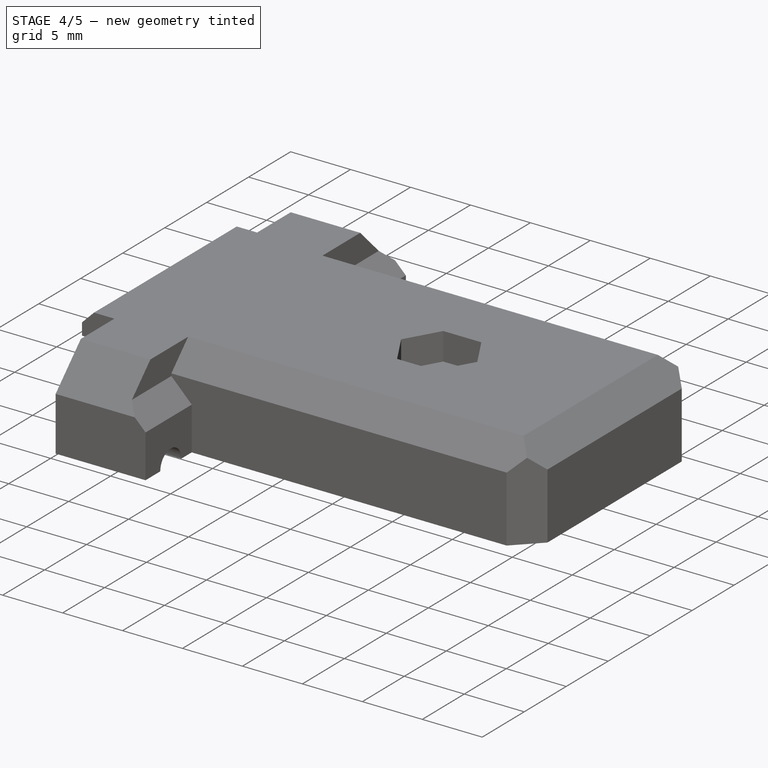
[diagram: stage 4 of 5 — iso view after this stage's code; geometry added in this stage tinted green]
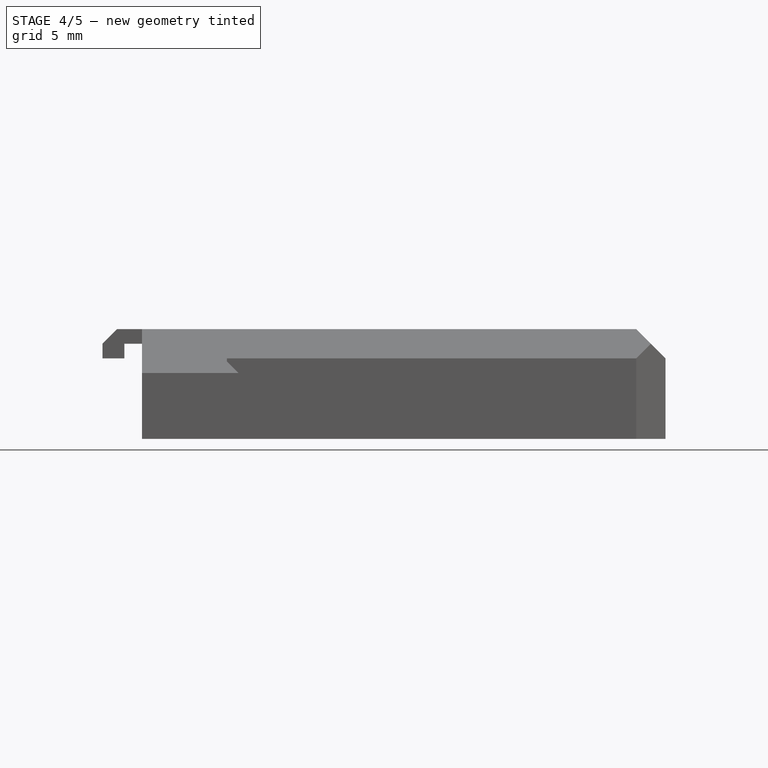
[diagram: stage 4 of 5 — front view after this stage's code; geometry added in this stage tinted green]
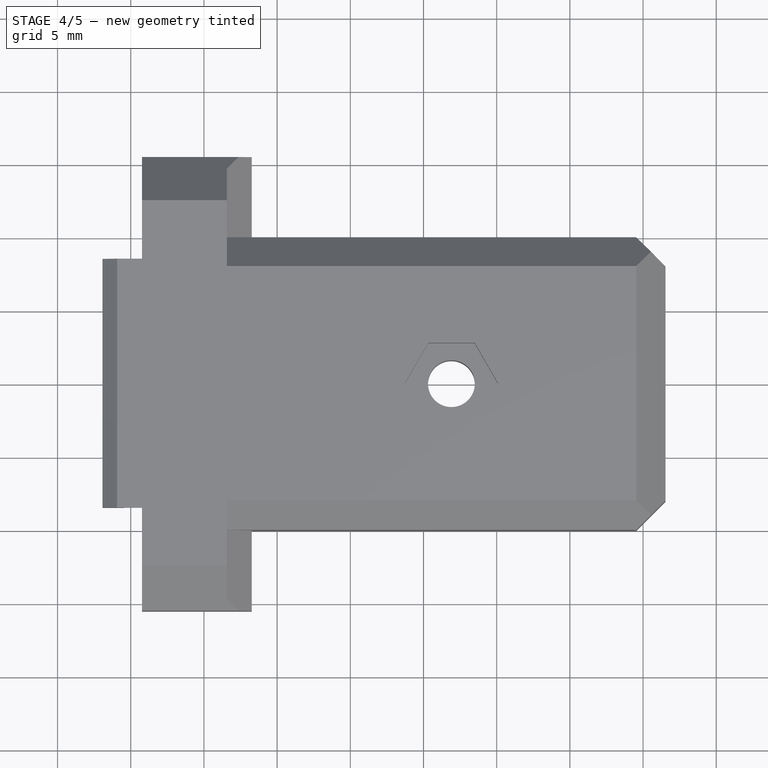
[diagram: stage 4 of 5 — top view after this stage's code; geometry added in this stage tinted green]
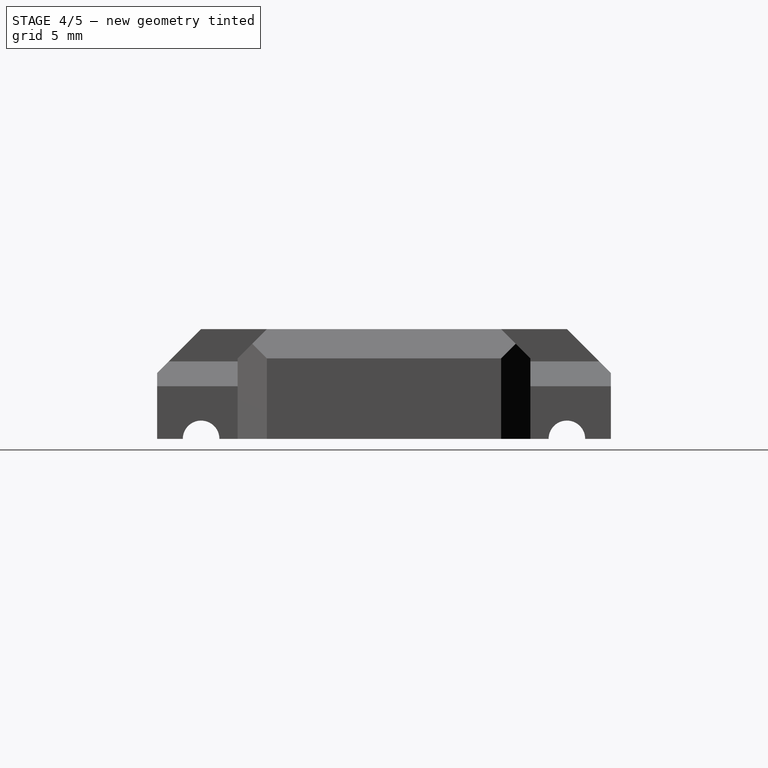
[diagram: stage 4 of 5 — right view after this stage's code; geometry added in this stage tinted green]
FEATURE [PartDesign::Chamfer] Chamfer001
  Angle = 45
  Base = -> Mirrored001 [Edge100,Edge102]
  BaseFeature = -> Mirrored001
  ChamferType = 0
  FlipDirection = false
  Refine = true
  Size = 4
  Size2 = 1
  SupportTransform = false
  Suppressed = false
  UseAllEdges = false
FEATURE [Sketcher::SketchObject] Sketch006
  ArcFitTolerance = 1e-06
  AttachmentSupport = -> [Chamfer001]
  ExternalGeometry = -> [Chamfer001]
  FullyConstrained = true
  MakeInternals = false
  MapMode = 5
  Placement = pos=(-19.2335,0,0) rot=(0.57735,-0.57735,-0.57735;2.0944rad)
  sketch-geometry (4):
    g0: LineSegment StartX=-8.5 StartY=8.5 StartZ=0 EndX=-8.5 EndY=6.5 EndZ=0
    g1: LineSegment StartX=-8.5 StartY=6.5 StartZ=0 EndX=8.5 EndY=6.5 EndZ=0
    g2: LineSegment StartX=8.5 StartY=6.5 StartZ=0 EndX=8.5 EndY=8.5 EndZ=0
    g3: LineSegment StartX=8.5 StartY=8.5 StartZ=0 EndX=-8.5 EndY=8.5 EndZ=0
  constraints (11):
    c: Coincident(g0,g1)
    c: Coincident(g1,g2)
    c: Coincident(g2,g3)
    c: Coincident(g3,g0)
    c: Vertical(g0)
    c: Vertical(g2)
    c: Horizontal(g1)
    c: PointOnObject(g0,g-3)
    c: Symmetric(g2,g0,g-2)
    c: DistanceX(g3,g3) = 17
    c: DistanceY(g-4,g0) = 1
FEATURE [PartDesign::Pad] Pad001
  BaseFeature = -> Chamfer001
  Direction = (-1,0,0)
  Length = 1.2
  Length2 = 10
  Profile = -> Sketch006
  ReferenceAxis = -> Sketch006 [N_Axis]
  Refine = true
  Suppressed = false
  Type = 0
FEATURE [Sketcher::SketchObject] Sketch007
  ArcFitTolerance = 1e-06
  AttachmentSupport = -> [Pad001]
  ExternalGeometry = -> [Pad001]
  FullyConstrained = true
  MakeInternals = false
  MapMode = 5
  Placement = pos=(-20.4335,0,0) rot=(0.57735,-0.57735,-0.57735;2.0944rad)
  sketch-geometry (4):
    g0: LineSegment StartX=8.5 StartY=8.5 StartZ=0 EndX=-8.5 EndY=8.5 EndZ=0
    g1: LineSegment StartX=-8.5 StartY=8.5 StartZ=0 EndX=-8.5 EndY=5.5 EndZ=0
    g2: LineSegment StartX=-8.5 StartY=5.5 StartZ=0 EndX=8.5 EndY=5.5 EndZ=0
    g3: LineSegment StartX=8.5 StartY=5.5 StartZ=0 EndX=8.5 EndY=8.5 EndZ=0
  constraints (10):
    c: Coincident(g0,g1)
    c: Coincident(g1,g2)
    c: Coincident(g2,g3)
    c: Coincident(g3,g0)
    c: Horizontal(g2)
    c: Vertical(g1)
    c: Vertical(g3)
    c: Coincident(g0,g-3)
    c: Coincident(g0,g-3)
    c: DistanceY(g1,g1) = 3
FEATURE [PartDesign::Pad] Pad002
  BaseFeature = -> Pad001
  Direction = (-1,0,0)
  Length = 1.5
  Length2 = 10
  Profile = -> Sketch007
  ReferenceAxis = -> Sketch007 [N_Axis]
  Refine = true
  Suppressed = false
  Type = 0
FEATURE [PartDesign::Chamfer] Chamfer002
  Angle = 45
  Base = -> Pad002 [Edge134]
  BaseFeature = -> Pad002
  ChamferType = 0
  FlipDirection = false
  Refine = true
  Size = 2
  Size2 = 1
  SupportTransform = false
  Suppressed = false
  UseAllEdges = false
FEATURE [Sketcher::SketchObject] Sketch009
  ArcFitTolerance = 1e-06
  ExternalGeometry = -> [Binder]
  FullyConstrained = true
  MakeInternals = false
  MapMode = 5
  Placement = pos=(0,0,5.5) rot=(1,0,0;3.14159rad)
  sketch-geometry (1):
    g0: Circle CenterX=1.905 CenterY=0 CenterZ=0 NormalX=0 NormalY=0 NormalZ=1 AngleXU=0 Radius=3
  constraints (2):
    c: Coincident(g0,g-3)
    c: Diameter(g0) = 6
FEATURE [PartDesign::Pad] Pad003
  BaseFeature = -> Chamfer002
  Direction = (0,0,-1)
  Length = 4.6
  Length2 = 10
  Profile = -> Sketch009
  ReferenceAxis = -> Sketch009 [N_Axis]
  Refine = true
  Suppressed = false
  Type = 0
FEATURE [PartDesign::Fillet] Fillet
  Base = -> Pad003 [Edge103]
  BaseFeature = -> Pad003
  Radius = 3
  Refine = true
  SupportTransform = false
  Suppressed = false
  UseAllEdges = false
FEATURE [PartDesign::Chamfer] Chamfer003
  Angle = 45
  Base = -> Fillet [Edge77,Edge76,Edge74]
  BaseFeature = -> Fillet
  ChamferType = 0
  FlipDirection = false
  Refine = true
  Size = 3
  Size2 = 1
  SupportTransform = false
  Suppressed = false
  UseAllEdges = false
FEATURE [PartDesign::Chamfer] Chamfer004
  Angle = 45
  Base = -> Chamfer003 [Edge138,Edge142]
  BaseFeature = -> Chamfer003
  ChamferType = 0
  FlipDirection = false
  Refine = true
  Size = 1
  Size2 = 1
  SupportTransform = false
  Suppressed = false
  UseAllEdges = false
FEATURE [PartDesign::Chamfer] Chamfer005
  Angle = 45
  Base = -> Chamfer004 [Edge92,Edge101]
  BaseFeature = -> Chamfer004
  ChamferType = 0
  FlipDirection = false
  Refine = true
  Size = 2
  Size2 = 1
  SupportTransform = false
  Suppressed = false
  UseAllEdges = false
FEATURE [Sketcher::SketchObject] Sketch010
  ArcFitTolerance = 1e-06
  AttachmentSupport = -> [Chamfer005]
  FullyConstrained = false
  MakeInternals = false
  MapMode = 5
  Placement = pos=(0,0,8.5) rot=(0,0,1;0rad)
  sketch-geometry (4):
    g0: LineSegment StartX=-32.3674 StartY=37.7996 StartZ=0 EndX=-32.3674 EndY=-25.4314 EndZ=0
    g1: LineSegment StartX=-32.3674 StartY=-25.4314 StartZ=0 EndX=38.9271 EndY=-25.4314 EndZ=0
    g2: LineSegment StartX=38.9271 StartY=-25.4314 StartZ=0 EndX=38.9271 EndY=37.7996 EndZ=0
    g3: LineSegment StartX=38.9271 StartY=37.7996 StartZ=0 EndX=-32.3674 EndY=37.7996 EndZ=0
  constraints (8):
    c: Coincident(g0,g1)
    c: Coincident(g1,g2)
    c: Coincident(g2,g3)
    c: Coincident(g3,g0)
    c: Vertical(g0)
    c: Vertical(g2)
    c: Horizontal(g1)
    c: Horizontal(g3)
FEATURE [PartDesign::Pocket] Pocket005
  BaseFeature = -> Chamfer005
  Direction = (0,0,-1)
  Length = 1
  Length2 = 5
  Profile = -> Sketch010
  ReferenceAxis = -> Sketch010 [N_Axis]
  Refine = true
  Suppressed = false
  Type = 0
FEATURE [Sketcher::SketchObject] Sketch011
  ArcFitTolerance = 1e-06
  AttachmentSupport = -> [Pocket005]
  ExternalGeometry = -> [Pocket005]
  FullyConstrained = true
  MakeInternals = false
  MapMode = 5
  Placement = pos=(0,0,0.9) rot=(1,0,0;3.14159rad)
  sketch-geometry (1):
    g0: Circle CenterX=1.905 CenterY=0 CenterZ=0 NormalX=0 NormalY=0 NormalZ=1 AngleXU=0 Radius=1.6
  constraints (2):
    c: Coincident(g0,g-3)
    c: Diameter(g0) = 3.2
FEATURE [PartDesign::Pocket] Pocket006
  BaseFeature = -> Pocket005
  Direction = (0,0,1)
  Length = 5
  Length2 = 5
  Profile = -> Sketch011
  ReferenceAxis = -> Sketch011 [N_Axis]
  Refine = true
  Suppressed = false
  Type = 1
FEATURE [Sketcher::SketchObject] Sketch012
  ArcFitTolerance = 1e-06
  AttachmentSupport = -> [Pocket006]
  ExternalGeometry = -> [Pocket006]
  FullyConstrained = true
  MakeInternals = false
  MapMode = 5
  Placement = pos=(0,0,7.5) rot=(0,0,1;0rad)
  sketch-geometry (7):
    g0: LineSegment StartX=3.49271 StartY=2.75 StartZ=0 EndX=0.317287 EndY=2.75 EndZ=0
    g1: LineSegment StartX=0.317287 StartY=2.75 StartZ=0 EndX=-1.27043 EndY=-8.52904e-11 EndZ=0
    g2: LineSegment StartX=-1.27043 StartY=-8.52904e-11 StartZ=0 EndX=0.317287 EndY=-2.75 EndZ=0
    g3: LineSegment StartX=0.317287 StartY=-2.75 StartZ=0 EndX=3.49271 EndY=-2.75 EndZ=0
    g4: LineSegment StartX=3.49271 StartY=-2.75 StartZ=0 EndX=5.08043 EndY=0 EndZ=0
    g5: LineSegment StartX=5.08043 StartY=0 StartZ=0 EndX=3.49271 EndY=2.75 EndZ=0
    g6: Circle [constr] CenterX=1.905 CenterY=0 CenterZ=0 NormalX=0 NormalY=0 NormalZ=1 AngleXU=0 Radius=3.17543
  constraints (16):
    c: Coincident(g0,g1)
    c: Coincident(g1,g2)
    c: Coincident(g2,g3)
    c: Coincident(g3,g4)
    c: Coincident(g4,g5)
    c: Coincident(g5,g0)
    c: Equal(g0, g1-g5) x5
    c: PointOnObject(g0,g6)
    c: PointOnObject(g1,g6)
    c: PointOnObject(g2,g6)
    c: PointOnObject(g3,g6)
    c: PointOnObject(g4,g6)
    c: PointOnObject(g5,g6)
    c: Coincident(g6,g-3)
    c: PointOnObject(g4,g-1)
    c: Distance(g3,g0) = 5.5
FEATURE [PartDesign::Pocket] Pocket007
  BaseFeature = -> Pocket006
  Direction = (0,0,-1)
  Length = 3
  Length2 = 5
  Profile = -> Sketch012
  ReferenceAxis = -> Sketch012 [N_Axis]
  Refine = true
  Suppressed = false
  Type = 0
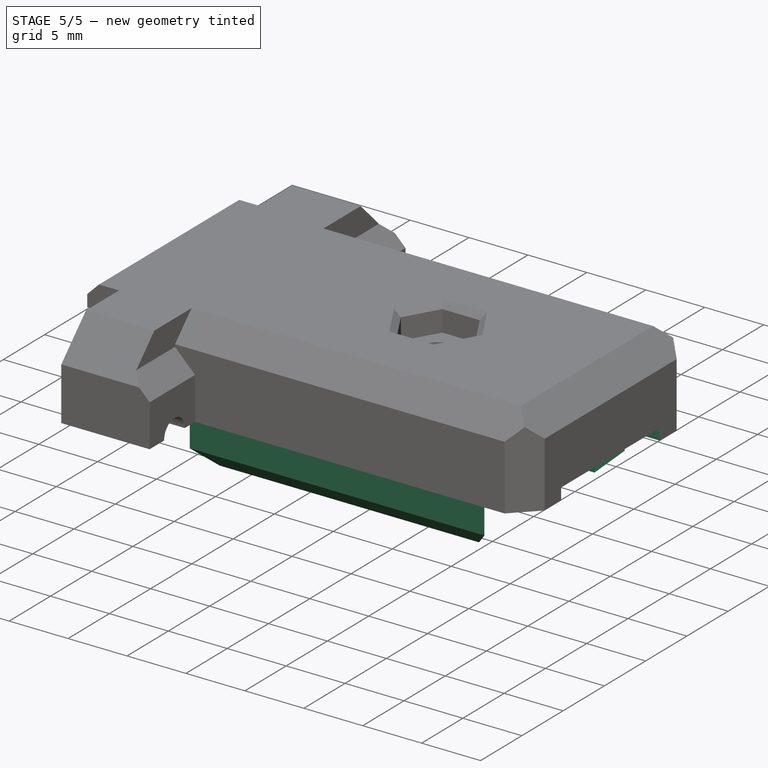
[diagram: stage 5 of 5 — iso view after this stage's code; geometry added in this stage tinted green]
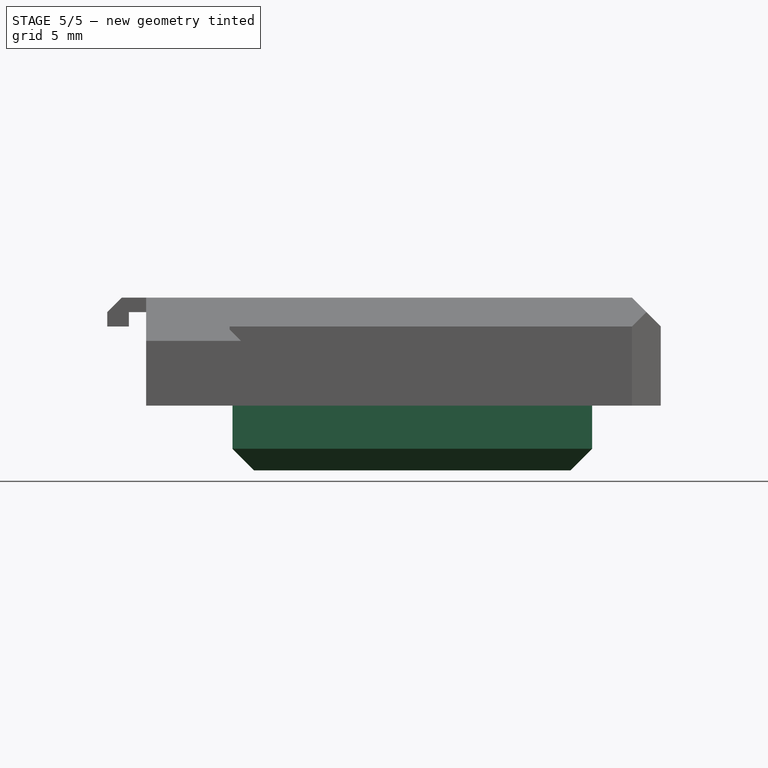
[diagram: stage 5 of 5 — front view after this stage's code; geometry added in this stage tinted green]
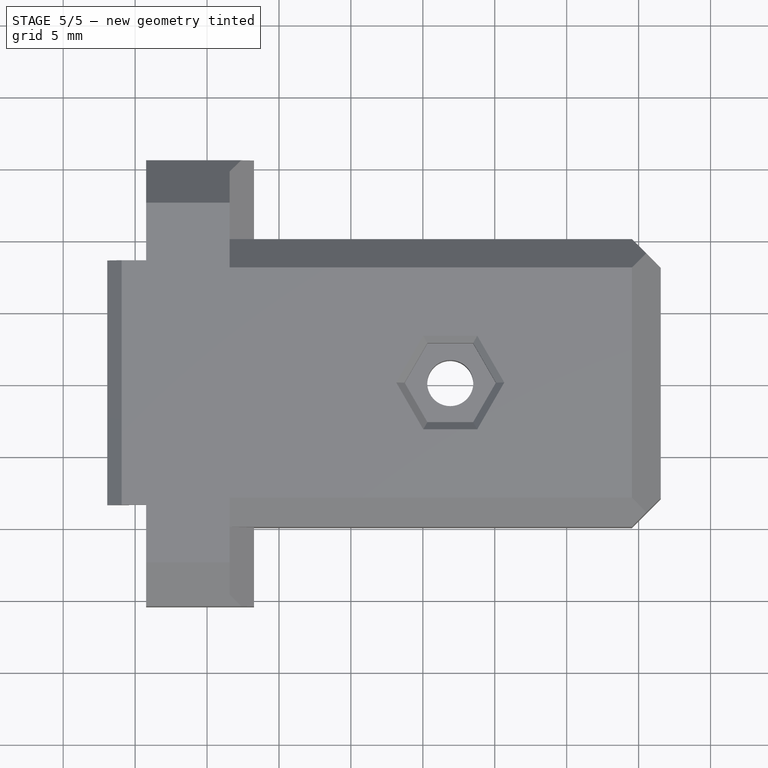
[diagram: stage 5 of 5 — top view after this stage's code; geometry added in this stage tinted green]
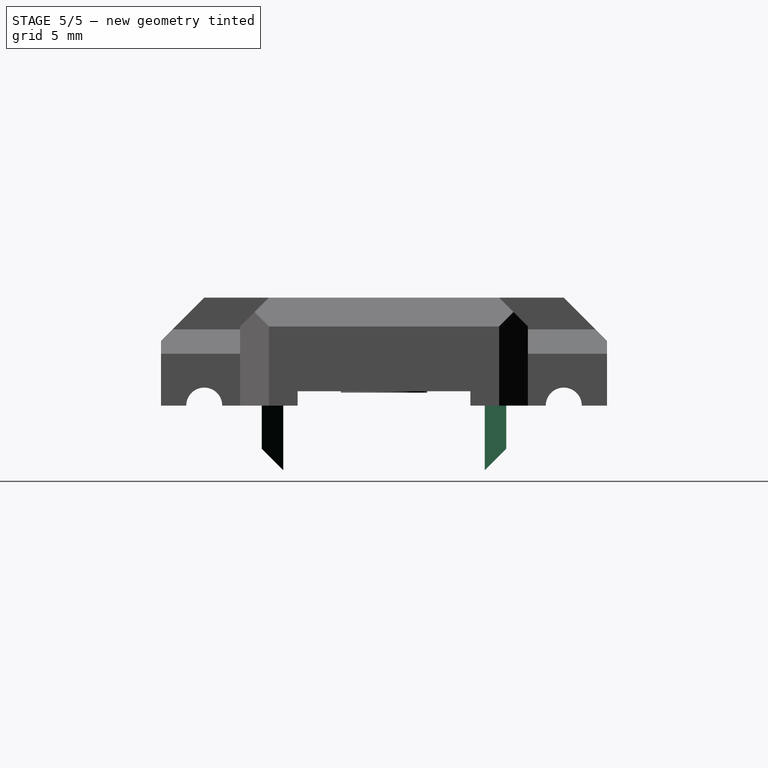
[diagram: stage 5 of 5 — right view after this stage's code; geometry added in this stage tinted green]
FEATURE [PartDesign::Chamfer] Chamfer006
  Angle = 45
  Base = -> Pocket007 [Edge154,Edge149,Edge150,Edge151,Edge152,Edge153]
  BaseFeature = -> Pocket007
  ChamferType = 0
  FlipDirection = false
  Refine = true
  Size = 0.5
  Size2 = 1
  SupportTransform = false
  Suppressed = false
  UseAllEdges = false
FEATURE [App::Part] USB_C_Receptacle_GCT_USB4105_xx_A_16P_TopMnt_Horizontal001  label="USB_C_Receptacle_GCT_USB4105-xx-A_16P_TopMnt_Horizontal073"
  Group = -> [Part__Feature047,Part__Feature048,Part__Feature049,Part__Feature050,Part__Feature051,Part__Feature052,Part__Feature053,Part__Feature054,Part__Feature055,Part__Feature056,Part__Feature057,Part__Feature058,Part__Feature059,Part__Feature060,Part__Feature061,Part__Feature062,Part__Feature063,Part__Feature064,Part__Feature065,Part__Feature066,Part__Feature067,Part__Feature068,Part__Feature069,+13 more]
  Origin = -> Origin004
FEATURE [App::Part] rs232usb_002  label="rs232usb 002"
  Group = -> [Part__Feature046,USB_C_Receptacle_GCT_USB4105_xx_A_16P_TopMnt_Horizontal001,Part__Feature083,Part__Feature084,Part__Feature085,Part__Feature086,Part__Feature087,Part__Feature088,Part__Feature089,Part__Feature090,Part__Feature091]
  Origin = -> Origin005
  Placement = pos=(0,0,-0.75) rot=(0,0,1;0rad)
FEATURE [Sketcher::SketchObject] Sketch025
  ArcFitTolerance = 1e-06
  AttachmentSupport = -> [Chamfer006]
  FullyConstrained = true
  MakeInternals = false
  MapMode = 5
  Placement = pos=(16.5335,0,0) rot=(0.57735,0.57735,0.57735;2.0944rad)
  sketch-geometry (4):
    g0: LineSegment StartX=-6 StartY=0 StartZ=0 EndX=6 EndY=0 EndZ=0
    g1: LineSegment StartX=6 StartY=0 StartZ=0 EndX=6 EndY=5 EndZ=0
    g2: LineSegment StartX=6 StartY=5 StartZ=0 EndX=-6 EndY=5 EndZ=0
    g3: LineSegment StartX=-6 StartY=5 StartZ=0 EndX=-6 EndY=0 EndZ=0
  constraints (11):
    c: Coincident(g0,g1)
    c: Coincident(g1,g2)
    c: Coincident(g2,g3)
    c: Coincident(g3,g0)
    c: Horizontal(g2)
    c: Vertical(g1)
    c: Vertical(g3)
    c: PointOnObject(g0,g-1)
    c: Symmetric(g0,g0,g-2)
    c: DistanceX(g0,g0) = 12
    c: DistanceY(g1,g1) = 5
FEATURE [PartDesign::Pocket] Pocket016
  BaseFeature = -> Chamfer006
  Direction = (-1,0,0)
  Length = 3
  Length2 = 5
  Profile = -> Sketch025
  ReferenceAxis = -> Sketch025 [N_Axis]
  Refine = true
  Suppressed = false
  Type = 0
FEATURE [PartDesign::Chamfer] Chamfer014
  Angle = 45
  Base = -> Pocket016 [Edge130,Edge129,Edge127,Edge125,Edge124]
  BaseFeature = -> Pocket016
  ChamferType = 0
  FlipDirection = false
  Refine = true
  Size = 0.4999
  Size2 = 1
  SupportTransform = false
  Suppressed = false
  UseAllEdges = false
FEATURE [PartDesign::Fillet] Fillet003
  Base = -> Chamfer014 [Edge10,Edge6]
  BaseFeature = -> Chamfer014
  Radius = 1
  Refine = true
  SupportTransform = false
  Suppressed = false
  UseAllEdges = false
FEATURE [Sketcher::SketchObject] Sketch026
  ArcFitTolerance = 1e-06
  AttachmentSupport = -> [Fillet003]
  ExternalGeometry = -> [Fillet003]
  FullyConstrained = true
  MakeInternals = false
  MapMode = 5
  Placement = pos=(0,0,5.5) rot=(1,0,0;3.14159rad)
  sketch-geometry (8):
    g0: LineSegment StartX=-13.2335 StartY=-8.5 StartZ=0 EndX=11.7665 EndY=-8.5 EndZ=0
    g1: LineSegment StartX=11.7665 StartY=-8.5 StartZ=0 EndX=11.7665 EndY=-7 EndZ=0
    g2: LineSegment StartX=11.7665 StartY=-7 StartZ=0 EndX=-13.2335 EndY=-7 EndZ=0
    g3: LineSegment StartX=-13.2335 StartY=-7 StartZ=0 EndX=-13.2335 EndY=-8.5 EndZ=0
    g4: LineSegment StartX=-13.2335 StartY=8.5 StartZ=0 EndX=-13.2335 EndY=7 EndZ=0
    g5: LineSegment StartX=-13.2335 StartY=7 StartZ=0 EndX=11.7665 EndY=7 EndZ=0
    g6: LineSegment StartX=11.7665 StartY=7 StartZ=0 EndX=11.7665 EndY=8.5 EndZ=0
    g7: LineSegment StartX=11.7665 StartY=8.5 StartZ=0 EndX=-13.2335 EndY=8.5 EndZ=0
  constraints (22):
    c: Coincident(g0,g1)
    c: Coincident(g1,g2)
    c: Coincident(g2,g3)
    c: Coincident(g3,g0)
    c: Horizontal(g0)
    c: Horizontal(g2)
    c: Vertical(g1)
    c: Vertical(g3)
    c: Coincident(g0,g-4)
    c: Coincident(g4,g5)
    c: Coincident(g5,g6)
    c: Coincident(g6,g7)
    c: Coincident(g7,g4)
    c: Vertical(g4)
    c: Vertical(g6)
    c: Horizontal(g5)
    c: Horizontal(g7)
    c: Coincident(g4,g-3)
    c: Equal(g5,g2)
    c: Equal(g3,g4)
    c: DistanceY(g4,g4) = 1.5
    c: DistanceX(g5,g5) = 25
FEATURE [PartDesign::Pad] Pad008
  BaseFeature = -> Fillet003
  Direction = (0,0,-1)
  Length = 10
  Length2 = 10
  Profile = -> Sketch026
  ReferenceAxis = -> Sketch026 [N_Axis]
  Refine = true
  Suppressed = false
  Type = 0
FEATURE [PartDesign::Chamfer] Chamfer016
  Angle = 45
  Base = -> Pad008 [Edge43,Edge22]
  BaseFeature = -> Pad008
  ChamferType = 0
  FlipDirection = false
  Refine = true
  Size = 1.4999
  Size2 = 1
  SupportTransform = false
  Suppressed = false
  UseAllEdges = false
FEATURE [PartDesign::Chamfer] Chamfer017
  Angle = 45
  Base = -> Chamfer016 [Edge29,Edge75]
  BaseFeature = -> Chamfer016
  ChamferType = 0
  FlipDirection = false
  Refine = true
  Size = 1.4999
  Size2 = 1
  SupportTransform = false
  Suppressed = false
  UseAllEdges = false
FEATURE [PartDesign::Chamfer] Chamfer018
  Angle = 45
  Base = -> Chamfer017 [Edge83,Edge179]
  BaseFeature = -> Chamfer017
  ChamferType = 0
  FlipDirection = false
  Refine = true
  Size = 1.4999
  Size2 = 1
  SupportTransform = false
  Suppressed = false
  UseAllEdges = false
FEATURE [Sketcher::SketchObject] Sketch027
  ArcFitTolerance = 1e-06
  AttachmentSupport = -> [Chamfer018]
  ExternalGeometry = -> [Chamfer018]
  FullyConstrained = true
  MakeInternals = false
  MapMode = 5
  Placement = pos=(-19.2335,0,0) rot=(0.57735,-0.57735,-0.57735;2.0944rad)
  sketch-geometry (2):
    g0: Circle CenterX=-12.495 CenterY=0 CenterZ=0 NormalX=0 NormalY=0 NormalZ=1 AngleXU=0 Radius=1.6
    g1: Circle CenterX=12.495 CenterY=0 CenterZ=0 NormalX=0 NormalY=0 NormalZ=1 AngleXU=0 Radius=1.6
  constraints (4):
    c: Coincident(g0,g-3)
    c: Coincident(g1,g-4)
    c: Equal(g1,g0)
    c: Diameter(g0) = 3.2
FEATURE [PartDesign::Pocket] Pocket017
  BaseFeature = -> Chamfer018
  Direction = (1,0,0)
  Length = 2
  Length2 = 5
  Profile = -> Sketch027
  ReferenceAxis = -> Sketch027 [N_Axis]
  Refine = true
  Suppressed = false
  Type = 0
FEATURE [Sketcher::SketchObject] Sketch030
  ArcFitTolerance = 1e-06
  AttachmentSupport = -> [Pocket017]
  ExternalGeometry = -> [Pocket017]
  FullyConstrained = true
  MakeInternals = false
  MapMode = 5
  Placement = pos=(16.5335,0,0) rot=(0.57735,0.57735,0.57735;2.0944rad)
  sketch-geometry (4):
    g0: LineSegment StartX=-6 StartY=5 StartZ=0 EndX=6 EndY=5 EndZ=0
    g1: LineSegment StartX=6 StartY=5 StartZ=0 EndX=6 EndY=6 EndZ=0
    g2: LineSegment StartX=6 StartY=6 StartZ=0 EndX=-6 EndY=6 EndZ=0
    g3: LineSegment StartX=-6 StartY=6 StartZ=0 EndX=-6 EndY=5 EndZ=0
  constraints (10):
    c: Coincident(g0,g1)
    c: Coincident(g1,g2)
    c: Coincident(g2,g3)
    c: Coincident(g3,g0)
    c: Horizontal(g2)
    c: Vertical(g1)
    c: Vertical(g3)
    c: Coincident(g0,g-3)
    c: Coincident(g0,g-3)
    c: DistanceY(g1,g1) = 1
FEATURE [PartDesign::Pocket] Pocket020
  BaseFeature = -> Pocket017
  Direction = (-1,0,0)
  Length = 2
  Length2 = 5
  Profile = -> Sketch030
  ReferenceAxis = -> Sketch030 [N_Axis]
  Refine = true
  Suppressed = false
  Type = 0
FEATURE [PartDesign::Pad] Pad009
  BaseFeature = -> Pocket020
  Direction = (0,0,1)
  Length = 1
  Length2 = 10
  Profile = -> Pocket020 [Face102]
  Refine = true
  Suppressed = false
  Type = 0
FEATURE [PartDesign::Pocket] Pocket021
  BaseFeature = -> Pad009
  Direction = (0,0,-1)
  Length = 1
  Length2 = 5
  Profile = -> Pad009 [Face103]
  Refine = true
  Suppressed = false
  Type = 0
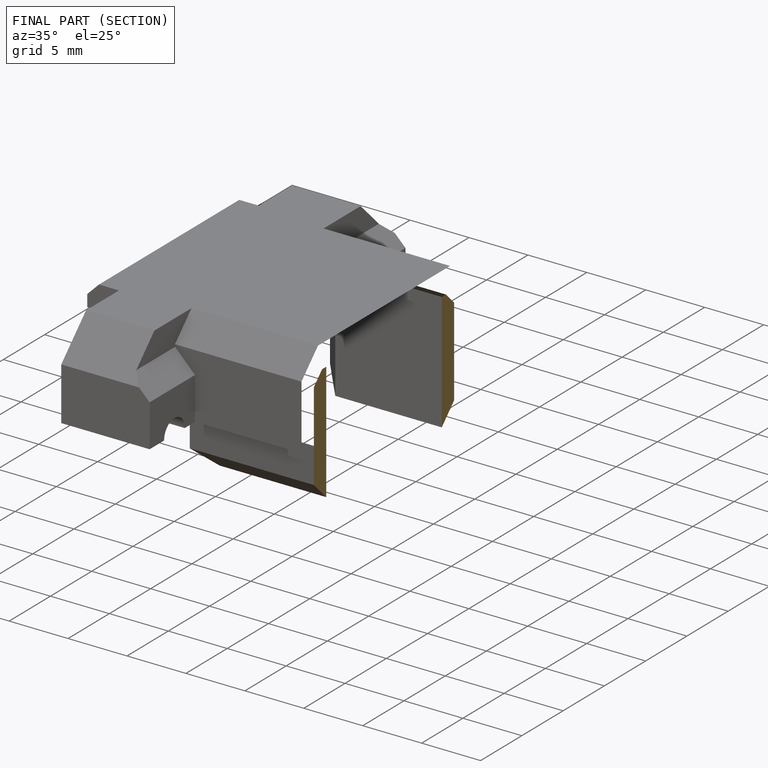
[diagram: finished part — half-section view (interior)]
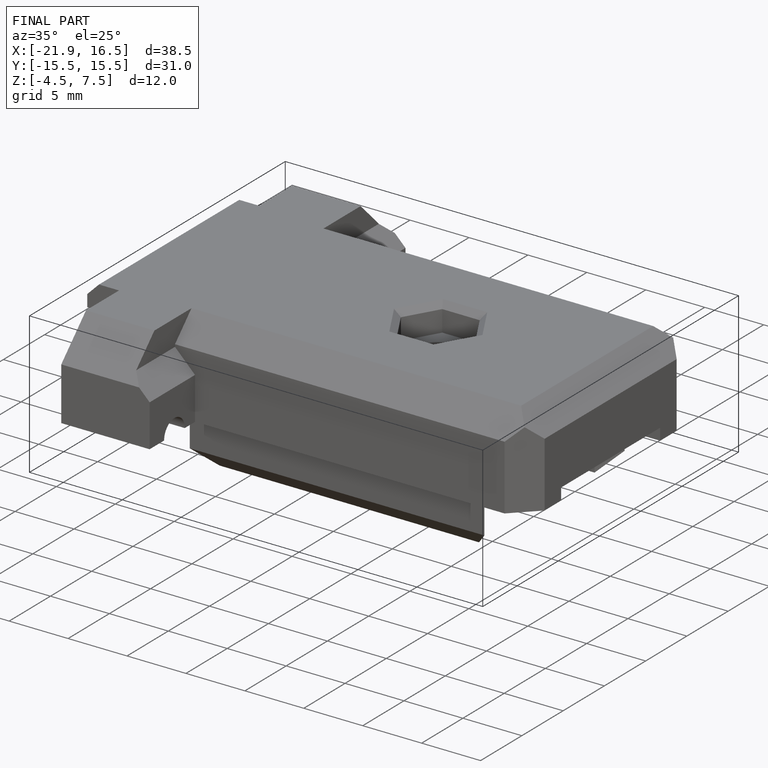
[diagram: finished part — iso view with bounding-box wireframe]
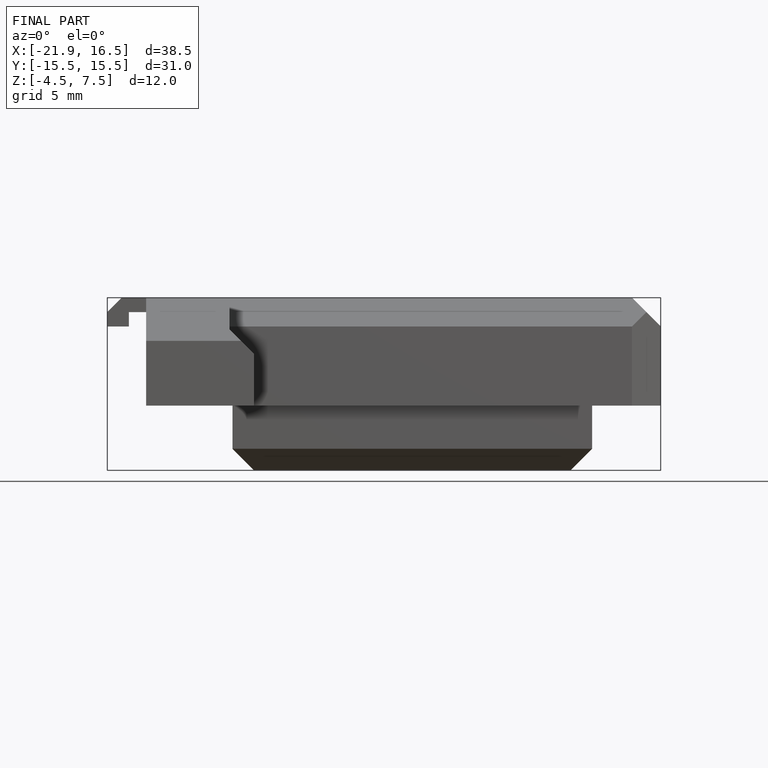
[diagram: finished part — front view with bounding-box wireframe]
